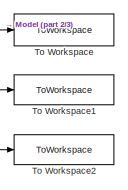
[diagram: root canvas - part 1/3, top right region]
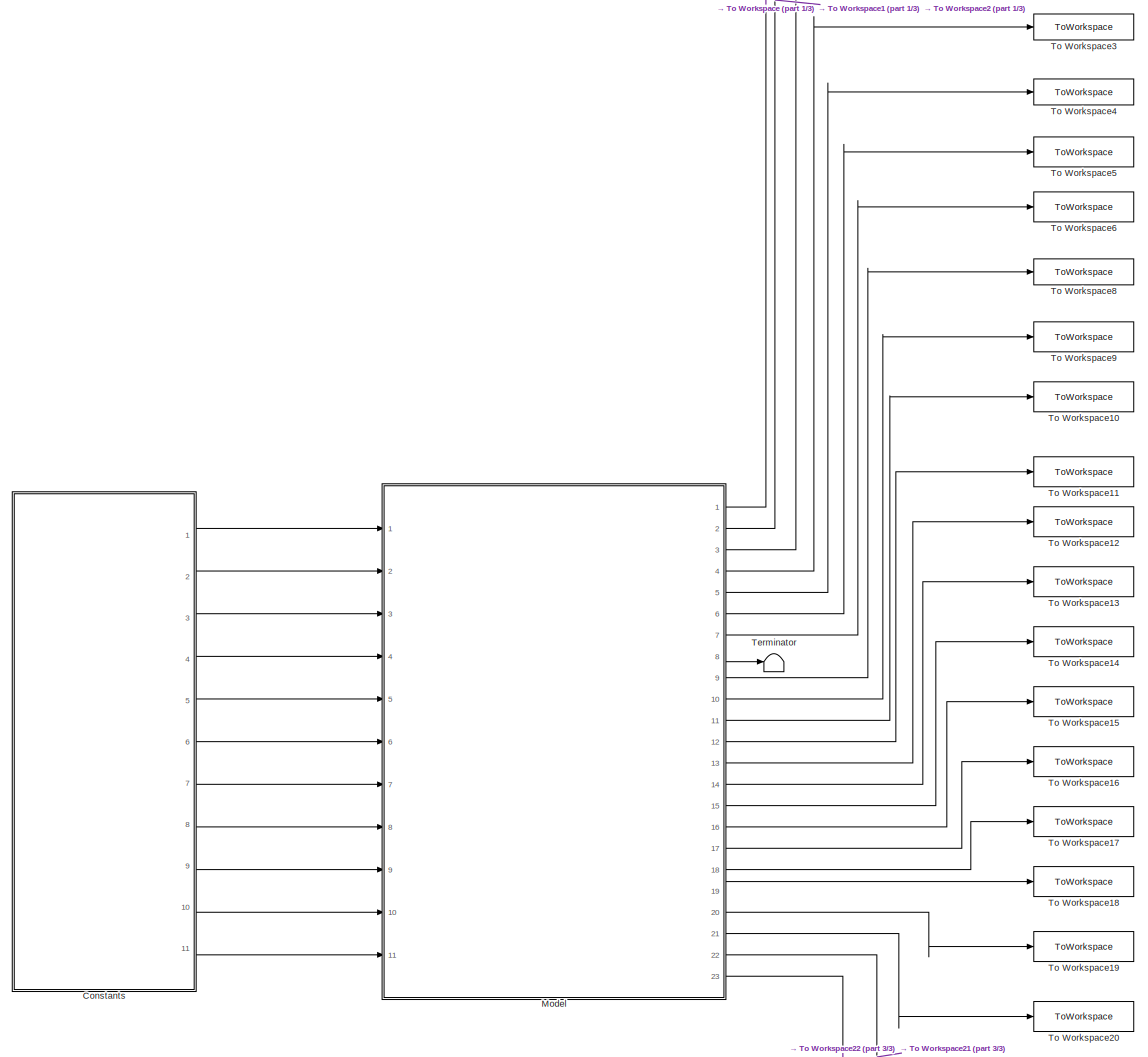
[diagram: root canvas - part 2/3, most of the canvas]
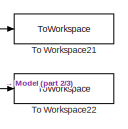
[diagram: root canvas - part 3/3, bottom right region]
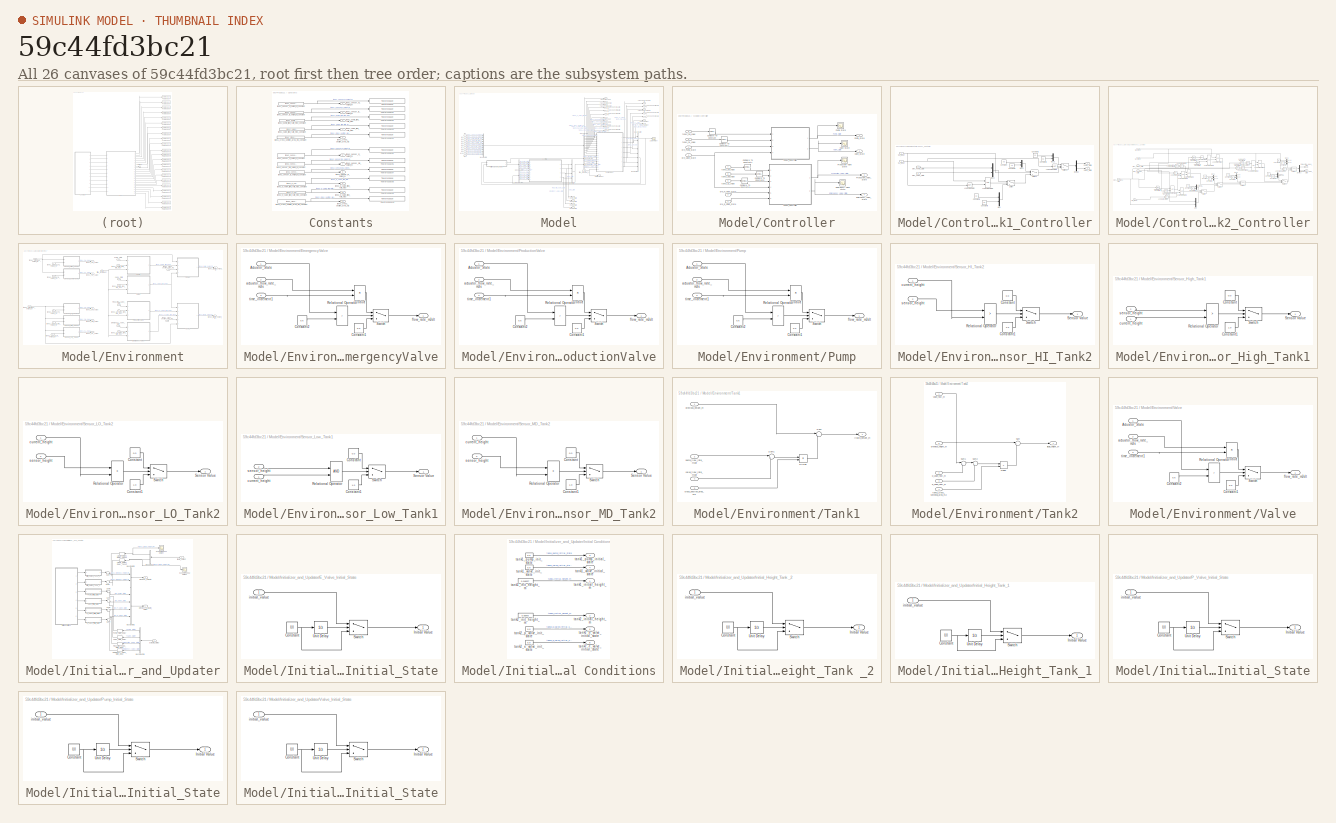
[diagram: thumbnail index - all 26 canvases of the model, root first then tree order]
MODEL slx_59c44fd3bc21
KIND model
CONFIG AbsTol = auto
CONFIG EnableMultiTasking = on
CONFIG FixedStep = 0.1
CONFIG MaxStep = auto
CONFIG MinStep = auto
CONFIG RelTol = 1e-3
CONFIG SampleTimeConstraint = Unconstrained
CONFIG Solver = FixedStepAuto
CONFIG SolverName = FixedStepAuto
CONFIG StartTime = 0.0
CONFIG StopTime = simTime
WORKSPACE source: MAT-file member
WORKSPACE F = [0 0]
BLOCK [SubSystem] Constants
  Ports = [0, 11]
  RequestExecContextInheritance = off
  Variant = off
BLOCK [ToWorkspace] Constants/To Workspace
  FixptAsFi = on
  MaxDataPoints = inf
  Ports = [1]
  SampleTime = -1
  Save2DSignal = 3-D array (concatenate along third dimension)
  VariableName = tank1_sensor_hi_height_m
BLOCK [ToWorkspace] Constants/To Workspace1
  FixptAsFi = on
  MaxDataPoints = inf
  Ports = [1]
  SampleTime = -1
  Save2DSignal = 3-D array (concatenate along third dimension)
  VariableName = tank1_sensor_lo_height_m
BLOCK [ToWorkspace] Constants/To Workspace10
  FixptAsFi = on
  MaxDataPoints = inf
  Ports = [1]
  SampleTime = -1
  Save2DSignal = 3-D array (concatenate along third dimension)
  VariableName = tank2_cross_section_area_m2
BLOCK [ToWorkspace] Constants/To Workspace2
  FixptAsFi = on
  MaxDataPoints = inf
  Ports = [1]
  SampleTime = -1
  Save2DSignal = 3-D array (concatenate along third dimension)
  VariableName = tank1_pump_flow_rate_m3s
BLOCK [ToWorkspace] Constants/To Workspace3
  FixptAsFi = on
  MaxDataPoints = inf
  Ports = [1]
  SampleTime = -1
  Save2DSignal = 3-D array (concatenate along third dimension)
  VariableName = tank1_valve_flow_rate_m3s
BLOCK [ToWorkspace] Constants/To Workspace4
  FixptAsFi = on
  MaxDataPoints = inf
  Ports = [1]
  SampleTime = -1
  Save2DSignal = 3-D array (concatenate along third dimension)
  VariableName = tank1_cross_section_area_m2
BLOCK [ToWorkspace] Constants/To Workspace5
  FixptAsFi = on
  MaxDataPoints = inf
  Ports = [1]
  SampleTime = -1
  Save2DSignal = 3-D array (concatenate along third dimension)
  VariableName = tank2_sensor_hi_height_m
BLOCK [ToWorkspace] Constants/To Workspace6
  FixptAsFi = on
  MaxDataPoints = inf
  Ports = [1]
  SampleTime = -1
  Save2DSignal = 3-D array (concatenate along third dimension)
  VariableName = tank2_sensor_md_height_m
BLOCK [ToWorkspace] Constants/To Workspace7
  FixptAsFi = on
  MaxDataPoints = inf
  Ports = [1]
  SampleTime = -1
  Save2DSignal = 3-D array (concatenate along third dimension)
  VariableName = tank2_sensor_lo_height_m
BLOCK [ToWorkspace] Constants/To Workspace8
  FixptAsFi = on
  MaxDataPoints = inf
  Ports = [1]
  SampleTime = -1
  Save2DSignal = 3-D array (concatenate along third dimension)
  VariableName = tank2_p_valve_flow_rate_m3s
BLOCK [ToWorkspace] Constants/To Workspace9
  FixptAsFi = on
  MaxDataPoints = inf
  Ports = [1]
  SampleTime = -1
  Save2DSignal = 3-D array (concatenate along third dimension)
  VariableName = tank2_e_valve_flow_rate_m3s
BLOCK [Outport] Constants/tank1_cross_section_area_m2
  IconDisplay = Port number
  Port = 5
BLOCK [Constant] Constants/tank1_cross_section_area_m2_constant
  Value = tank1_cross_section_area_m2_in
BLOCK [Outport] Constants/tank1_pump_flow_rate_m3s
  IconDisplay = Port number
  Port = 3
BLOCK [Constant] Constants/tank1_pump_flow_rate_m3s_constant
  Value = tank1_pump_flow_rate_m3s_in
BLOCK [Outport] Constants/tank1_sensor_hi_height_m
  IconDisplay = Port number
BLOCK [Constant] Constants/tank1_sensor_hi_height_m_constant
  Value = tank1_sensor_hi_height_m_in
BLOCK [Outport] Constants/tank1_sensor_lo_height_m
  IconDisplay = Port number
  Port = 2
BLOCK [Constant] Constants/tank1_sensor_lo_height_m_constant
  Value = tank1_sensor_lo_height_m_in
BLOCK [Outport] Constants/tank1_valve_flow_rate_m3s
  IconDisplay = Port number
  Port = 4
BLOCK [Constant] Constants/tank1_valve_flow_rate_m3s_constant
  Value = tank1_valve_flow_rate_m3s_in
BLOCK [Outport] Constants/tank2_cross_section_area_m2
  IconDisplay = Port number
  Port = 11
BLOCK [Constant] Constants/tank2_cross_section_area_m2_constant
  Value = tank2_cross_section_area_m2_in
BLOCK [Outport] Constants/tank2_e_valve_flow_rate_m3s
  IconDisplay = Port number
  Port = 10
BLOCK [Constant] Constants/tank2_e_valve_flow_rate_m3s_constant
  Value = tank2_e_valve_flow_rate_m3s_in
BLOCK [Outport] Constants/tank2_p_valve_flow_rate_m3s
  IconDisplay = Port number
  Port = 9
BLOCK [Constant] Constants/tank2_p_valve_flow_rate_m3s_constant
  Value = tank2_p_valve_flow_rate_m3s_in
BLOCK [Outport] Constants/tank2_sensor_hi_height_m
  IconDisplay = Port number
  Port = 6
BLOCK [Constant] Constants/tank2_sensor_hi_height_m_constant
  Value = tank2_sensor_hi_height_m_in
BLOCK [Outport] Constants/tank2_sensor_lo_height_m
  IconDisplay = Port number
  Port = 8
BLOCK [Constant] Constants/tank2_sensor_lo_height_m_constant
  Value = tank2_sensor_lo_height_m_in
BLOCK [Outport] Constants/tank2_sensor_md_height_m
  IconDisplay = Port number
  Port = 7
BLOCK [Constant] Constants/tank2_sensor_md_height_m_constant
  Value = tank2_sensor_md_height_m_in
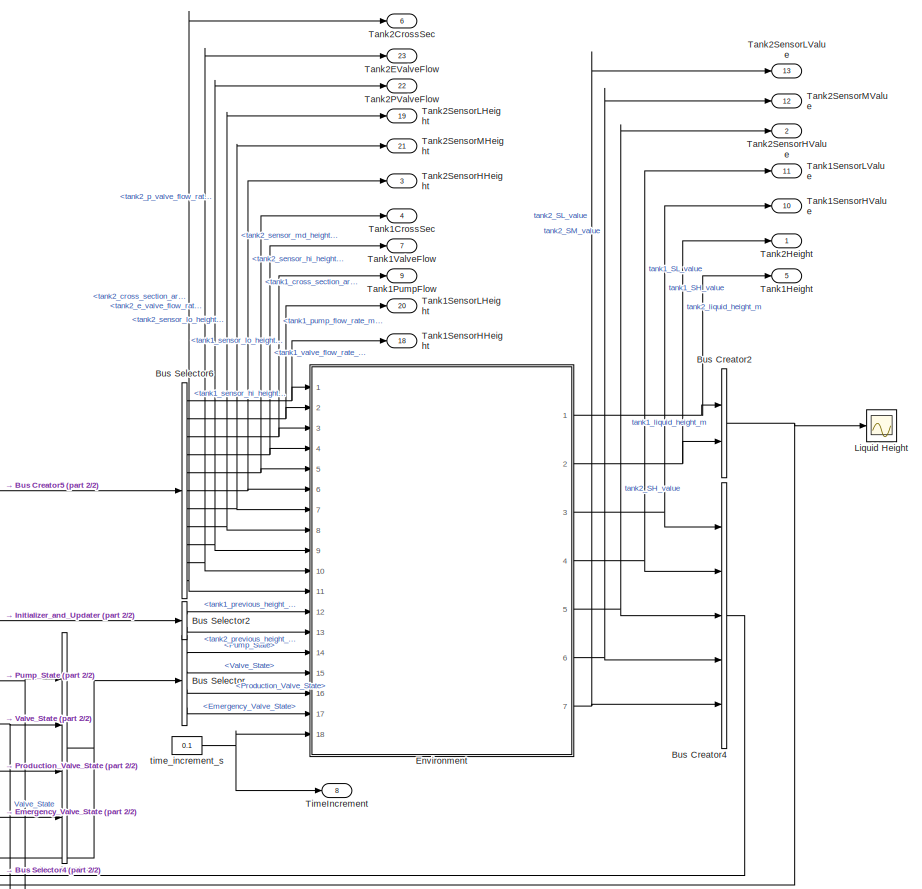
[diagram: Model - part 1/2, right side, full height]
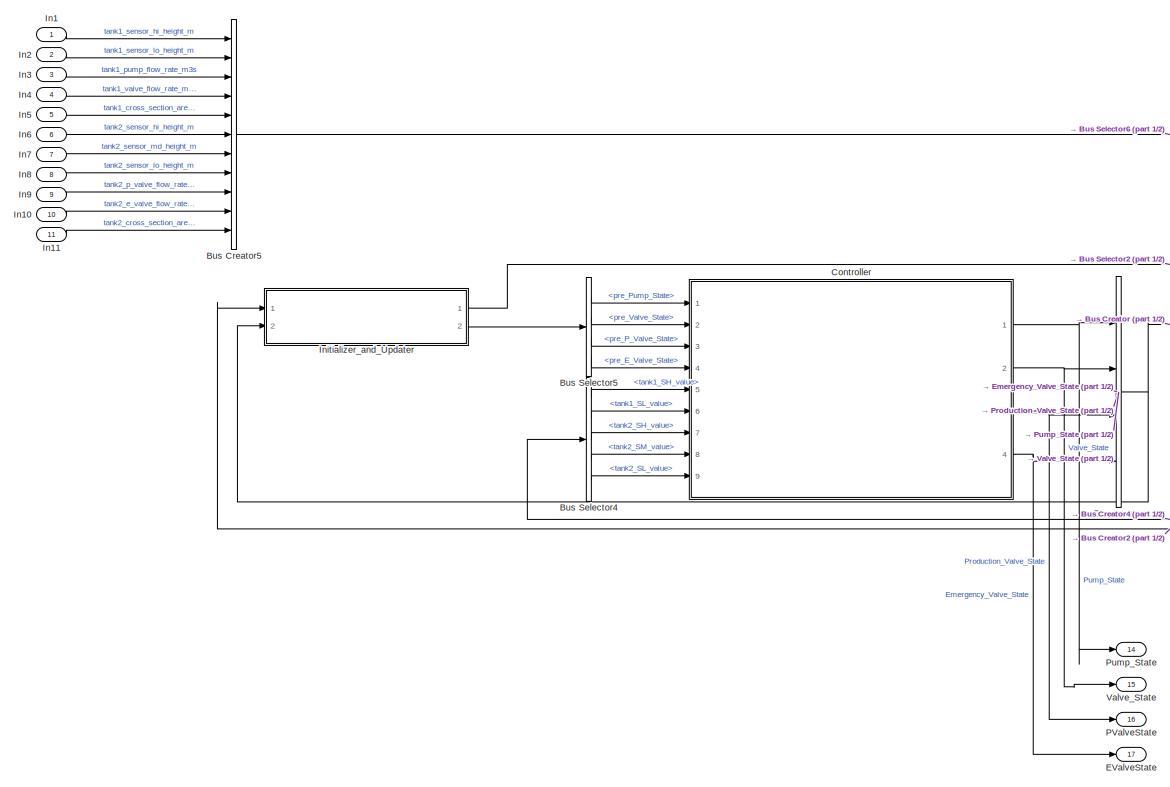
[diagram: Model - part 2/2, middle left region]
BLOCK [SubSystem] Model
  Ports = [11, 23]
  RequestExecContextInheritance = off
  Variant = off
BLOCK [BusCreator] Model/Bus Creator
  DisplayOption = bar
  InheritFromInputs = on
  Inputs = 4
  Ports = [4, 1]
BLOCK [BusCreator] Model/Bus Creator2
  DisplayOption = bar
  InheritFromInputs = on
  Inputs = 'tank1_liquid_height_m','tank2_liquid_height_m'
  Ports = [2, 1]
BLOCK [BusCreator] Model/Bus Creator4
  DisplayOption = bar
  InheritFromInputs = on
  Inputs = 'tank1_SH_value','tank1_SL_value','tank2_SH_value','tank2_SM_value','tank2_SL_value'
  Ports = [5, 1]
BLOCK [BusCreator] Model/Bus Creator5
  DisplayOption = bar
  InheritFromInputs = on
  Inputs = 'tank1_sensor_hi_height_m','tank1_sensor_lo_height_m','tank1_pump_flow_rate_m3s','tank1_valve_flow_rate_m3s','tank1_cross_section_area_m2','tank2_sensor_hi_height_m','tank2_sensor_md_height_m','tank2_sensor_lo_height_m','tank2_p_valve_flow_rate_m3s','tank2_e_valve_flow_rate_m3s','tank2_cross_section_area_m2'
  Ports = [11, 1]
BLOCK [BusSelector] Model/Bus Selector
  OutputAsBus = off
  OutputSignals = Pump_State,Valve_State,Production_Valve_State,Emergency_Valve_State
  Ports = [1, 4]
BLOCK [BusSelector] Model/Bus Selector2
  OutputAsBus = off
  OutputSignals = tank1_previous_height_m,tank2_previous_height_m
  Ports = [1, 2]
BLOCK [BusSelector] Model/Bus Selector4
  OutputAsBus = off
  OutputSignals = tank1_SH_value,tank1_SL_value,tank2_SH_value,tank2_SM_value,tank2_SL_value
  Ports = [1, 5]
BLOCK [BusSelector] Model/Bus Selector5
  OutputAsBus = off
  OutputSignals = pre_Pump_State,pre_Valve_State,pre_P_Valve_State,pre_E_Valve_State
  Ports = [1, 4]
BLOCK [BusSelector] Model/Bus Selector6
  OutputAsBus = off
  OutputSignals = tank1_sensor_hi_height_m,tank1_sensor_lo_height_m,tank1_pump_flow_rate_m3s,tank1_valve_flow_rate_m3s,tank1_cross_section_area_m2,tank2_sensor_hi_height_m,tank2_sensor_md_height_m,tank2_sensor_lo_height_m,tank2_p_valve_flow_rate_m3s,tank2_e_valve_flow_rate_m3s,tank2_cross_section_area_m2
  Ports = [1, 11]
BLOCK [SubSystem] Model/Controller
  Ports = [9, 4]
  RequestExecContextInheritance = off
  Variant = off
BLOCK [Reference] Model/Controller/Compare To Constant  REF=simulink/Logic and Bit
Operations/Compare
To Constant
  Ports = [1, 1]
  SourceBlock = simulink/Logic and Bit\nOperations/Compare\nTo Constant
  SourceProductBaseCode = SL
  SourceProductName = Simulink
  SourceType = Compare To Constant
BLOCK [Reference] Model/Controller/Compare To Constant1  REF=simulink/Logic and Bit
Operations/Compare
To Constant
  Ports = [1, 1]
  SourceBlock = simulink/Logic and Bit\nOperations/Compare\nTo Constant
  SourceProductBaseCode = SL
  SourceProductName = Simulink
  SourceType = Compare To Constant
BLOCK [Reference] Model/Controller/Compare To Constant4  REF=simulink/Logic and Bit
Operations/Compare
To Constant
  Ports = [1, 1]
  SourceBlock = simulink/Logic and Bit\nOperations/Compare\nTo Constant
  SourceProductBaseCode = SL
  SourceProductName = Simulink
  SourceType = Compare To Constant
BLOCK [Reference] Model/Controller/Compare To Constant5  REF=simulink/Logic and Bit
Operations/Compare
To Constant
  Ports = [1, 1]
  SourceBlock = simulink/Logic and Bit\nOperations/Compare\nTo Constant
  SourceProductBaseCode = SL
  SourceProductName = Simulink
  SourceType = Compare To Constant
BLOCK [Reference] Model/Controller/Compare To Constant6  REF=simulink/Logic and Bit
Operations/Compare
To Constant
  Ports = [1, 1]
  SourceBlock = simulink/Logic and Bit\nOperations/Compare\nTo Constant
  SourceProductBaseCode = SL
  SourceProductName = Simulink
  SourceType = Compare To Constant
BLOCK [Scope] Model/Controller/Emergency Valve State
  NumInputPorts = 1
  Ports = [1]
  ScopeSpecificationString = Simulink.scopes.TimeScopeBlockCfg('CurrentConfiguration', extmgr.ConfigurationSet(extmgr.Configuration('Core','General UI',true),extmgr.Configuration('Core','Source UI',true),extmgr.Configuration('Sources','WiredSimulink',true,'DataLoggingVariableName','ScopeData3','DataLoggingSaveFormat','StructureWithTime','DataLoggingLimitDataPoints',true,'DataLoggingDecimation','1','DataLoggingDecimateData',tr...<+911ch>
BLOCK [Outport] Model/Controller/Emergency_Valve_State
  IconDisplay = Port number
  Port = 4
BLOCK [Scope] Model/Controller/Production Valve State
  NumInputPorts = 1
  Ports = [1]
  ScopeSpecificationString = Simulink.scopes.TimeScopeBlockCfg('CurrentConfiguration', extmgr.ConfigurationSet(extmgr.Configuration('Core','General UI',true),extmgr.Configuration('Core','Source UI',true),extmgr.Configuration('Sources','WiredSimulink',true,'DataLoggingVariableName','ScopeData2','DataLoggingSaveFormat','StructureWithTime','DataLoggingLimitDataPoints',true,'DataLoggingDecimation','1','DataLoggingDecimateData',tr...<+913ch>
BLOCK [Outport] Model/Controller/Production_Valve_State
  IconDisplay = Port number
  Port = 3
BLOCK [Scope] Model/Controller/Pump State 
  NumInputPorts = 1
  Ports = [1]
  ScopeSpecificationString = Simulink.scopes.TimeScopeBlockCfg('CurrentConfiguration', extmgr.ConfigurationSet(extmgr.Configuration('Core','General UI',true),extmgr.Configuration('Core','Source UI',true),extmgr.Configuration('Sources','WiredSimulink',true,'DataLoggingVariableName','ScopeData4','DataLoggingSaveFormat','StructureWithTime','DataLoggingLimitDataPoints',true,'DataLoggingDecimation','1','DataLoggingDecimateData',tr...<+1673ch>
BLOCK [Outport] Model/Controller/Pump_State
  IconDisplay = Port number
BLOCK [SubSystem] Model/Controller/Tank1_Controller
  Ports = [4, 2]
  RequestExecContextInheritance = off
  Variant = off
BLOCK [Constant] Model/Controller/Tank1_Controller/Constant
  Value = 0.0
BLOCK [Constant] Model/Controller/Tank1_Controller/Constant1
  Value = 1.0
BLOCK [Constant] Model/Controller/Tank1_Controller/Constant2
  Value = 1.0
BLOCK [Constant] Model/Controller/Tank1_Controller/Constant3
  Value = 0.0
BLOCK [Constant] Model/Controller/Tank1_Controller/Constant4
  Value = -1.0
BLOCK [Constant] Model/Controller/Tank1_Controller/Constant5
  Value = -1.0
BLOCK [Demux] Model/Controller/Tank1_Controller/Demux
  DisplayOption = bar
  Outputs = 2
  Ports = [1, 2]
BLOCK [Logic] Model/Controller/Tank1_Controller/Logical Operator
  AllPortsSameDT = off
  Operator = NOT
  OutDataTypeStr = boolean
  Ports = [1, 1]
BLOCK [Logic] Model/Controller/Tank1_Controller/Logical Operator1
  AllPortsSameDT = off
  OutDataTypeStr = boolean
  Ports = [2, 1]
BLOCK [Logic] Model/Controller/Tank1_Controller/Logical Operator2
  AllPortsSameDT = off
  Operator = NOT
  OutDataTypeStr = boolean
  Ports = [1, 1]
BLOCK [Mux] Model/Controller/Tank1_Controller/Mux
  DisplayOption = bar
  Inputs = 2
  Ports = [2, 1]
BLOCK [Mux] Model/Controller/Tank1_Controller/Mux1
  DisplayOption = bar
  Inputs = 2
  Ports = [2, 1]
BLOCK [Mux] Model/Controller/Tank1_Controller/Mux2
  DisplayOption = bar
  Inputs = 2
  Ports = [2, 1]
BLOCK [Mux] Model/Controller/Tank1_Controller/Mux3
  DisplayOption = bar
  Inputs = 2
  Ports = [2, 1]
BLOCK [Outport] Model/Controller/Tank1_Controller/Pump_State
  IconDisplay = Port number
BLOCK [Inport] Model/Controller/Tank1_Controller/SH_Input
  IconDisplay = Port number
BLOCK [Inport] Model/Controller/Tank1_Controller/SL_Input
  IconDisplay = Port number
  Port = 2
BLOCK [Switch] Model/Controller/Tank1_Controller/Switch
  Criteria = u2 ~= 0
  InputSameDT = off
  SaturateOnIntegerOverflow = off
BLOCK [Switch] Model/Controller/Tank1_Controller/Switch2
  Criteria = u2 ~= 0
  InputSameDT = off
  SaturateOnIntegerOverflow = off
BLOCK [Switch] Model/Controller/Tank1_Controller/Switch3
  Criteria = u2 ~= 0
  InputSameDT = off
  SaturateOnIntegerOverflow = off
BLOCK [Outport] Model/Controller/Tank1_Controller/Valve_State
  IconDisplay = Port number
  Port = 2
BLOCK [Inport] Model/Controller/Tank1_Controller/prev_Pump_State
  IconDisplay = Port number
  Port = 3
BLOCK [Inport] Model/Controller/Tank1_Controller/prev_Valve_State
  IconDisplay = Port number
  Port = 4
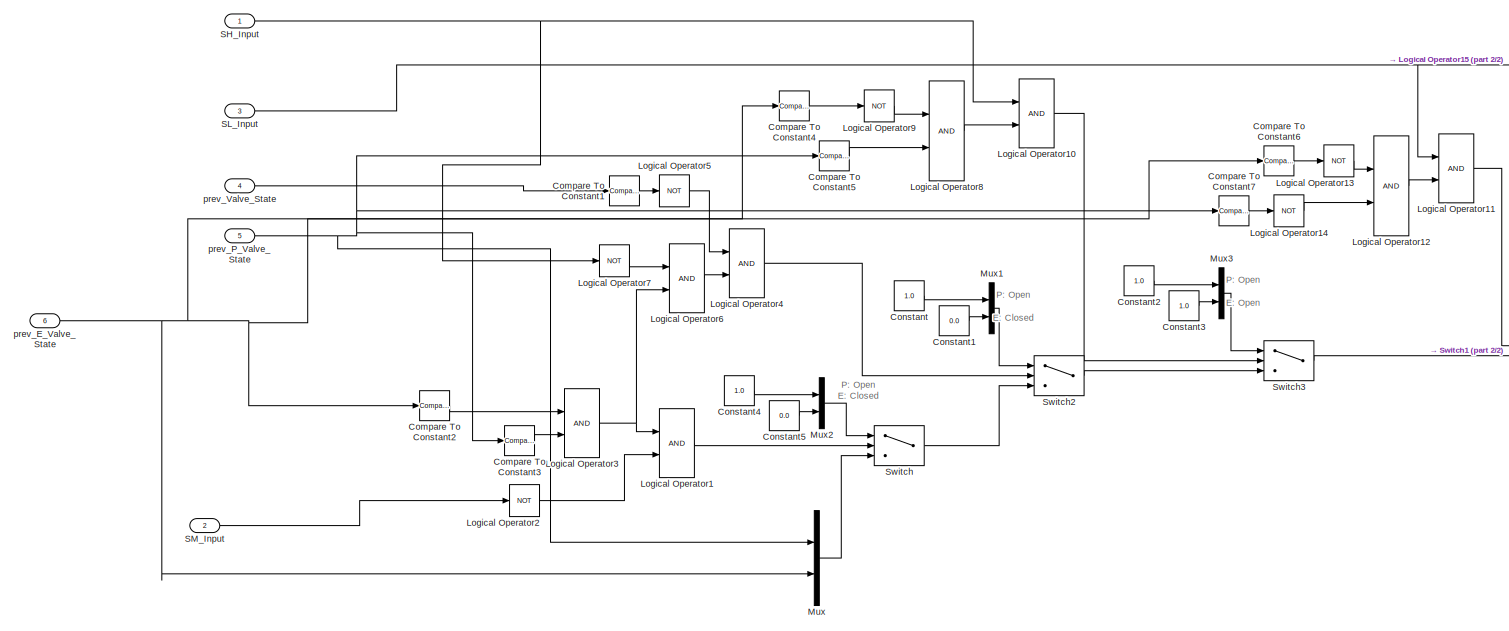
[diagram: Model/Controller/Tank2_Controller - part 1/2, most of the canvas]
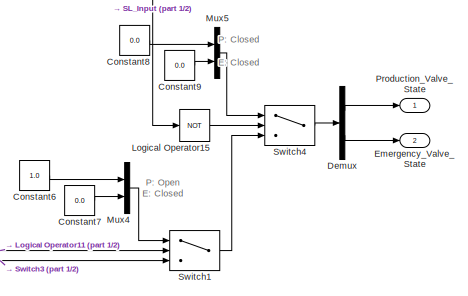
[diagram: Model/Controller/Tank2_Controller - part 2/2, middle right region]
BLOCK [SubSystem] Model/Controller/Tank2_Controller
  Ports = [6, 2]
  RequestExecContextInheritance = off
  Variant = off
BLOCK [Reference] Model/Controller/Tank2_Controller/Compare To Constant1  REF=simulink/Logic and Bit
Operations/Compare
To Constant
  Ports = [1, 1]
  SourceBlock = simulink/Logic and Bit\nOperations/Compare\nTo Constant
  SourceProductBaseCode = SL
  SourceProductName = Simulink
  SourceType = Compare To Constant
BLOCK [Reference] Model/Controller/Tank2_Controller/Compare To Constant2  REF=simulink/Logic and Bit
Operations/Compare
To Constant
  Ports = [1, 1]
  SourceBlock = simulink/Logic and Bit\nOperations/Compare\nTo Constant
  SourceProductBaseCode = SL
  SourceProductName = Simulink
  SourceType = Compare To Constant
BLOCK [Reference] Model/Controller/Tank2_Controller/Compare To Constant3  REF=simulink/Logic and Bit
Operations/Compare
To Constant
  Ports = [1, 1]
  SourceBlock = simulink/Logic and Bit\nOperations/Compare\nTo Constant
  SourceProductBaseCode = SL
  SourceProductName = Simulink
  SourceType = Compare To Constant
BLOCK [Reference] Model/Controller/Tank2_Controller/Compare To Constant4  REF=simulink/Logic and Bit
Operations/Compare
To Constant
  Ports = [1, 1]
  SourceBlock = simulink/Logic and Bit\nOperations/Compare\nTo Constant
  SourceProductBaseCode = SL
  SourceProductName = Simulink
  SourceType = Compare To Constant
BLOCK [Reference] Model/Controller/Tank2_Controller/Compare To Constant5  REF=simulink/Logic and Bit
Operations/Compare
To Constant
  Ports = [1, 1]
  SourceBlock = simulink/Logic and Bit\nOperations/Compare\nTo Constant
  SourceProductBaseCode = SL
  SourceProductName = Simulink
  SourceType = Compare To Constant
BLOCK [Reference] Model/Controller/Tank2_Controller/Compare To Constant6  REF=simulink/Logic and Bit
Operations/Compare
To Constant
  Ports = [1, 1]
  SourceBlock = simulink/Logic and Bit\nOperations/Compare\nTo Constant
  SourceProductBaseCode = SL
  SourceProductName = Simulink
  SourceType = Compare To Constant
BLOCK [Reference] Model/Controller/Tank2_Controller/Compare To Constant7  REF=simulink/Logic and Bit
Operations/Compare
To Constant
  Ports = [1, 1]
  SourceBlock = simulink/Logic and Bit\nOperations/Compare\nTo Constant
  SourceProductBaseCode = SL
  SourceProductName = Simulink
  SourceType = Compare To Constant
BLOCK [Constant] Model/Controller/Tank2_Controller/Constant
  Value = 1.0
BLOCK [Constant] Model/Controller/Tank2_Controller/Constant1
  Value = 0.0
BLOCK [Constant] Model/Controller/Tank2_Controller/Constant2
  Value = 1.0
BLOCK [Constant] Model/Controller/Tank2_Controller/Constant3
  Value = 1.0
BLOCK [Constant] Model/Controller/Tank2_Controller/Constant4
  Value = 1.0
BLOCK [Constant] Model/Controller/Tank2_Controller/Constant5
  Value = 0.0
BLOCK [Constant] Model/Controller/Tank2_Controller/Constant6
  Value = 1.0
BLOCK [Constant] Model/Controller/Tank2_Controller/Constant7
  Value = 0.0
BLOCK [Constant] Model/Controller/Tank2_Controller/Constant8
  Value = 0.0
BLOCK [Constant] Model/Controller/Tank2_Controller/Constant9
  Value = 0.0
BLOCK [Demux] Model/Controller/Tank2_Controller/Demux
  DisplayOption = bar
  Outputs = 2
  Ports = [1, 2]
BLOCK [Outport] Model/Controller/Tank2_Controller/Emergency_Valve_State
  IconDisplay = Port number
  Port = 2
BLOCK [Logic] Model/Controller/Tank2_Controller/Logical Operator1
  AllPortsSameDT = off
  OutDataTypeStr = boolean
  Ports = [2, 1]
BLOCK [Logic] Model/Controller/Tank2_Controller/Logical Operator10
  AllPortsSameDT = off
  OutDataTypeStr = boolean
  Ports = [2, 1]
BLOCK [Logic] Model/Controller/Tank2_Controller/Logical Operator11
  AllPortsSameDT = off
  OutDataTypeStr = boolean
  Ports = [2, 1]
BLOCK [Logic] Model/Controller/Tank2_Controller/Logical Operator12
  AllPortsSameDT = off
  OutDataTypeStr = boolean
  Ports = [2, 1]
BLOCK [Logic] Model/Controller/Tank2_Controller/Logical Operator13
  AllPortsSameDT = off
  Operator = NOT
  OutDataTypeStr = boolean
  Ports = [1, 1]
BLOCK [Logic] Model/Controller/Tank2_Controller/Logical Operator14
  AllPortsSameDT = off
  Operator = NOT
  OutDataTypeStr = boolean
  Ports = [1, 1]
BLOCK [Logic] Model/Controller/Tank2_Controller/Logical Operator15
  AllPortsSameDT = off
  Operator = NOT
  OutDataTypeStr = boolean
  Ports = [1, 1]
BLOCK [Logic] Model/Controller/Tank2_Controller/Logical Operator2
  AllPortsSameDT = off
  Operator = NOT
  OutDataTypeStr = boolean
  Ports = [1, 1]
BLOCK [Logic] Model/Controller/Tank2_Controller/Logical Operator3
  AllPortsSameDT = off
  OutDataTypeStr = boolean
  Ports = [2, 1]
BLOCK [Logic] Model/Controller/Tank2_Controller/Logical Operator4
  AllPortsSameDT = off
  OutDataTypeStr = boolean
  Ports = [2, 1]
BLOCK [Logic] Model/Controller/Tank2_Controller/Logical Operator5
  AllPortsSameDT = off
  Operator = NOT
  OutDataTypeStr = boolean
  Ports = [1, 1]
BLOCK [Logic] Model/Controller/Tank2_Controller/Logical Operator6
  AllPortsSameDT = off
  OutDataTypeStr = boolean
  Ports = [2, 1]
BLOCK [Logic] Model/Controller/Tank2_Controller/Logical Operator7
  AllPortsSameDT = off
  Operator = NOT
  OutDataTypeStr = boolean
  Ports = [1, 1]
BLOCK [Logic] Model/Controller/Tank2_Controller/Logical Operator8
  AllPortsSameDT = off
  OutDataTypeStr = boolean
  Ports = [2, 1]
BLOCK [Logic] Model/Controller/Tank2_Controller/Logical Operator9
  AllPortsSameDT = off
  Operator = NOT
  OutDataTypeStr = boolean
  Ports = [1, 1]
BLOCK [Mux] Model/Controller/Tank2_Controller/Mux
  DisplayOption = bar
  Inputs = 2
  Ports = [2, 1]
BLOCK [Mux] Model/Controller/Tank2_Controller/Mux1
  DisplayOption = bar
  Inputs = 2
  Ports = [2, 1]
BLOCK [Mux] Model/Controller/Tank2_Controller/Mux2
  DisplayOption = bar
  Inputs = 2
  Ports = [2, 1]
BLOCK [Mux] Model/Controller/Tank2_Controller/Mux3
  DisplayOption = bar
  Inputs = 2
  Ports = [2, 1]
BLOCK [Mux] Model/Controller/Tank2_Controller/Mux4
  DisplayOption = bar
  Inputs = 2
  Ports = [2, 1]
BLOCK [Mux] Model/Controller/Tank2_Controller/Mux5
  DisplayOption = bar
  Inputs = 2
  Ports = [2, 1]
BLOCK [Outport] Model/Controller/Tank2_Controller/Production_Valve_State
  IconDisplay = Port number
BLOCK [Inport] Model/Controller/Tank2_Controller/SH_Input
  IconDisplay = Port number
BLOCK [Inport] Model/Controller/Tank2_Controller/SL_Input
  IconDisplay = Port number
  Port = 3
BLOCK [Inport] Model/Controller/Tank2_Controller/SM_Input
  IconDisplay = Port number
  Port = 2
BLOCK [Switch] Model/Controller/Tank2_Controller/Switch
  Criteria = u2 ~= 0
  InputSameDT = off
  SaturateOnIntegerOverflow = off
BLOCK [Switch] Model/Controller/Tank2_Controller/Switch1
  Criteria = u2 ~= 0
  InputSameDT = off
  SaturateOnIntegerOverflow = off
BLOCK [Switch] Model/Controller/Tank2_Controller/Switch2
  Criteria = u2 ~= 0
  InputSameDT = off
  SaturateOnIntegerOverflow = off
BLOCK [Switch] Model/Controller/Tank2_Controller/Switch3
  Criteria = u2 ~= 0
  InputSameDT = off
  SaturateOnIntegerOverflow = off
BLOCK [Switch] Model/Controller/Tank2_Controller/Switch4
  Criteria = u2 ~= 0
  InputSameDT = off
  SaturateOnIntegerOverflow = off
BLOCK [Inport] Model/Controller/Tank2_Controller/prev_E_Valve_State
  IconDisplay = Port number
  Port = 6
BLOCK [Inport] Model/Controller/Tank2_Controller/prev_P_Valve_State
  IconDisplay = Port number
  Port = 5
BLOCK [Inport] Model/Controller/Tank2_Controller/prev_Valve_State
  IconDisplay = Port number
  Port = 4
BLOCK [Scope] Model/Controller/Valve State
  NumInputPorts = 1
  Ports = [1]
  ScopeSpecificationString = Simulink.scopes.TimeScopeBlockCfg('CurrentConfiguration', extmgr.ConfigurationSet(extmgr.Configuration('Core','General UI',true),extmgr.Configuration('Core','Source UI',true),extmgr.Configuration('Sources','WiredSimulink',true,'DataLoggingVariableName','ScopeData1','DataLoggingSaveFormat','StructureWithTime','DataLoggingLimitDataPoints',true,'DataLoggingDecimation','1','DataLoggingDecimateData',tr...<+1672ch>
BLOCK [Outport] Model/Controller/Valve_State
  IconDisplay = Port number
  Port = 2
BLOCK [Inport] Model/Controller/pre_E_Valve_State
  IconDisplay = Port number
  Port = 4
BLOCK [Inport] Model/Controller/pre_P_Valve_State
  IconDisplay = Port number
  Port = 3
BLOCK [Inport] Model/Controller/pre_Pump_State
  IconDisplay = Port number
BLOCK [Inport] Model/Controller/pre_Valve_State
  IconDisplay = Port number
  Port = 2
BLOCK [Inport] Model/Controller/tank1_SH_value
  IconDisplay = Port number
  Port = 5
BLOCK [Inport] Model/Controller/tank1_SL_value
  IconDisplay = Port number
  Port = 6
BLOCK [Inport] Model/Controller/tank2_SH_value
  IconDisplay = Port number
  Port = 7
BLOCK [Inport] Model/Controller/tank2_SL_value
  IconDisplay = Port number
  Port = 9
BLOCK [Inport] Model/Controller/tank2_SM_value
  IconDisplay = Port number
  Port = 8
BLOCK [Outport] Model/EValveState
  IconDisplay = Port number
  Port = 17
BLOCK [SubSystem] Model/Environment
  Ports = [18, 7]
  RequestExecContextInheritance = off
  Variant = off
BLOCK [SubSystem] Model/Environment/EmergencyValve
  Ports = [3, 1]
  RequestExecContextInheritance = off
  Variant = off
BLOCK [Inport] Model/Environment/EmergencyValve/Actuator_State
  IconDisplay = Port number
BLOCK [Constant] Model/Environment/EmergencyValve/Constant1
  Value = 0.0
BLOCK [Constant] Model/Environment/EmergencyValve/Constant2
  Value = 0.5
BLOCK [Product] Model/Environment/EmergencyValve/Product
  InputSameDT = off
  OutDataTypeStr = Inherit: Inherit via internal rule
  Ports = [2, 1]
  RndMeth = Floor
  SaturateOnIntegerOverflow = off
BLOCK [RelationalOperator] Model/Environment/EmergencyValve/Relational Operator
  InputSameDT = off
  Operator = >
  OutDataTypeStr = boolean
  Ports = [2, 1]
BLOCK [Switch] Model/Environment/EmergencyValve/Switch
  Criteria = u2 ~= 0
  InputSameDT = off
  SaturateOnIntegerOverflow = off
BLOCK [Inport] Model/Environment/EmergencyValve/actuator_flow_rate_m3s
  IconDisplay = Port number
  Port = 2
BLOCK [Outport] Model/Environment/EmergencyValve/flow_rate_m3dt
  IconDisplay = Port number
BLOCK [Inport] Model/Environment/EmergencyValve/time_increment1
  IconDisplay = Port number
  Port = 3
BLOCK [Inport] Model/Environment/Emergency_Valve_State
  IconDisplay = Port number
  Port = 17
BLOCK [SubSystem] Model/Environment/ProductionValve
  Ports = [3, 1]
  RequestExecContextInheritance = off
  Variant = off
BLOCK [Inport] Model/Environment/ProductionValve/Actuator_State
  IconDisplay = Port number
BLOCK [Constant] Model/Environment/ProductionValve/Constant1
  Value = 0.0
BLOCK [Constant] Model/Environment/ProductionValve/Constant2
  Value = 0.5
BLOCK [Product] Model/Environment/ProductionValve/Product
  InputSameDT = off
  OutDataTypeStr = Inherit: Inherit via internal rule
  Ports = [2, 1]
  RndMeth = Floor
  SaturateOnIntegerOverflow = off
BLOCK [RelationalOperator] Model/Environment/ProductionValve/Relational Operator
  InputSameDT = off
  Operator = >
  OutDataTypeStr = boolean
  Ports = [2, 1]
BLOCK [Switch] Model/Environment/ProductionValve/Switch
  Criteria = u2 ~= 0
  InputSameDT = off
  SaturateOnIntegerOverflow = off
BLOCK [Inport] Model/Environment/ProductionValve/actuator_flow_rate_m3s
  IconDisplay = Port number
  Port = 2
BLOCK [Outport] Model/Environment/ProductionValve/flow_rate_m3dt
  IconDisplay = Port number
BLOCK [Inport] Model/Environment/ProductionValve/time_increment1
  IconDisplay = Port number
  Port = 3
BLOCK [Inport] Model/Environment/Production_Valve_State
  IconDisplay = Port number
  Port = 16
BLOCK [SubSystem] Model/Environment/Pump
  Ports = [3, 1]
  RequestExecContextInheritance = off
  Variant = off
BLOCK [Inport] Model/Environment/Pump/Actuator_State
  IconDisplay = Port number
BLOCK [Constant] Model/Environment/Pump/Constant1
  Value = 0.0
BLOCK [Constant] Model/Environment/Pump/Constant2
  Value = 0.5
BLOCK [Product] Model/Environment/Pump/Product
  InputSameDT = off
  OutDataTypeStr = Inherit: Inherit via internal rule
  Ports = [2, 1]
  RndMeth = Floor
  SaturateOnIntegerOverflow = off
BLOCK [RelationalOperator] Model/Environment/Pump/Relational Operator
  InputSameDT = off
  Operator = >
  OutDataTypeStr = boolean
  Ports = [2, 1]
BLOCK [Switch] Model/Environment/Pump/Switch
  Criteria = u2 ~= 0
  InputSameDT = off
  SaturateOnIntegerOverflow = off
BLOCK [Inport] Model/Environment/Pump/actuator_flow_rate_m3s
  IconDisplay = Port number
  Port = 2
BLOCK [Outport] Model/Environment/Pump/flow_rate_m3dt
  IconDisplay = Port number
BLOCK [Inport] Model/Environment/Pump/time_increment1
  IconDisplay = Port number
  Port = 3
BLOCK [Inport] Model/Environment/Pump_State
  IconDisplay = Port number
  Port = 14
BLOCK [SubSystem] Model/Environment/Sensor_HI_Tank2
  Ports = [2, 1]
  RequestExecContextInheritance = off
  Variant = off
BLOCK [Constant] Model/Environment/Sensor_HI_Tank2/Constant
  Value = 0.0
BLOCK [Constant] Model/Environment/Sensor_HI_Tank2/Constant1
  Value = 1.0
BLOCK [RelationalOperator] Model/Environment/Sensor_HI_Tank2/Relational Operator
  InputSameDT = off
  Operator = >
  OutDataTypeStr = boolean
  Ports = [2, 1]
BLOCK [Outport] Model/Environment/Sensor_HI_Tank2/Sensor Value
  IconDisplay = Port number
BLOCK [Switch] Model/Environment/Sensor_HI_Tank2/Switch
  Criteria = u2 ~= 0
  InputSameDT = off
  SaturateOnIntegerOverflow = off
BLOCK [Inport] Model/Environment/Sensor_HI_Tank2/current_height
  IconDisplay = Port number
BLOCK [Inport] Model/Environment/Sensor_HI_Tank2/sensor_height
  IconDisplay = Port number
  Port = 2
BLOCK [SubSystem] Model/Environment/Sensor_High_Tank1
  Ports = [2, 1]
  RequestExecContextInheritance = off
  Variant = off
BLOCK [Constant] Model/Environment/Sensor_High_Tank1/Constant
  Value = 0.0
BLOCK [Constant] Model/Environment/Sensor_High_Tank1/Constant1
  Value = 1.0
BLOCK [RelationalOperator] Model/Environment/Sensor_High_Tank1/Relational Operator
  InputSameDT = off
  Operator = >
  OutDataTypeStr = boolean
  Ports = [2, 1]
BLOCK [Outport] Model/Environment/Sensor_High_Tank1/Sensor Value
  IconDisplay = Port number
BLOCK [Switch] Model/Environment/Sensor_High_Tank1/Switch
  Criteria = u2 ~= 0
  InputSameDT = off
  SaturateOnIntegerOverflow = off
BLOCK [Inport] Model/Environment/Sensor_High_Tank1/current_height
  IconDisplay = Port number
BLOCK [Inport] Model/Environment/Sensor_High_Tank1/sensor_height
  IconDisplay = Port number
  Port = 2
BLOCK [SubSystem] Model/Environment/Sensor_LO_Tank2
  Ports = [2, 1]
  RequestExecContextInheritance = off
  Variant = off
BLOCK [Constant] Model/Environment/Sensor_LO_Tank2/Constant
  Value = 0.0
BLOCK [Constant] Model/Environment/Sensor_LO_Tank2/Constant1
  Value = 1.0
BLOCK [RelationalOperator] Model/Environment/Sensor_LO_Tank2/Relational Operator
  InputSameDT = off
  Operator = >
  OutDataTypeStr = boolean
  Ports = [2, 1]
BLOCK [Outport] Model/Environment/Sensor_LO_Tank2/Sensor Value
  IconDisplay = Port number
BLOCK [Switch] Model/Environment/Sensor_LO_Tank2/Switch
  Criteria = u2 ~= 0
  InputSameDT = off
  SaturateOnIntegerOverflow = off
BLOCK [Inport] Model/Environment/Sensor_LO_Tank2/current_height
  IconDisplay = Port number
BLOCK [Inport] Model/Environment/Sensor_LO_Tank2/sensor_height
  IconDisplay = Port number
  Port = 2
BLOCK [SubSystem] Model/Environment/Sensor_Low_Tank1
  Ports = [2, 1]
  RequestExecContextInheritance = off
  Variant = off
BLOCK [Constant] Model/Environment/Sensor_Low_Tank1/Constant
  Value = 0.0
BLOCK [Constant] Model/Environment/Sensor_Low_Tank1/Constant1
  Value = 1.0
BLOCK [RelationalOperator] Model/Environment/Sensor_Low_Tank1/Relational Operator
  InputSameDT = off
  OutDataTypeStr = boolean
  Ports = [2, 1]
BLOCK [Outport] Model/Environment/Sensor_Low_Tank1/Sensor Value
  IconDisplay = Port number
BLOCK [Switch] Model/Environment/Sensor_Low_Tank1/Switch
  Criteria = u2 ~= 0
  InputSameDT = off
  SaturateOnIntegerOverflow = off
BLOCK [Inport] Model/Environment/Sensor_Low_Tank1/current_height
  IconDisplay = Port number
BLOCK [Inport] Model/Environment/Sensor_Low_Tank1/sensor_height
  IconDisplay = Port number
  Port = 2
BLOCK [SubSystem] Model/Environment/Sensor_MD_Tank2
  Ports = [2, 1]
  RequestExecContextInheritance = off
  Variant = off
BLOCK [Constant] Model/Environment/Sensor_MD_Tank2/Constant
  Value = 0.0
BLOCK [Constant] Model/Environment/Sensor_MD_Tank2/Constant1
  Value = 1.0
BLOCK [RelationalOperator] Model/Environment/Sensor_MD_Tank2/Relational Operator
  InputSameDT = off
  Operator = >
  OutDataTypeStr = boolean
  Ports = [2, 1]
BLOCK [Outport] Model/Environment/Sensor_MD_Tank2/Sensor Value
  IconDisplay = Port number
BLOCK [Switch] Model/Environment/Sensor_MD_Tank2/Switch
  Criteria = u2 ~= 0
  InputSameDT = off
  SaturateOnIntegerOverflow = off
BLOCK [Inport] Model/Environment/Sensor_MD_Tank2/current_height
  IconDisplay = Port number
BLOCK [Inport] Model/Environment/Sensor_MD_Tank2/sensor_height
  IconDisplay = Port number
  Port = 2
BLOCK [SubSystem] Model/Environment/Tank1
  Ports = [4, 1]
  RequestExecContextInheritance = off
  Variant = off
BLOCK [Product] Model/Environment/Tank1/Divide
  InputSameDT = off
  Inputs = */
  OutDataTypeStr = Inherit: Inherit via internal rule
  Ports = [2, 1]
  RndMeth = Floor
  SaturateOnIntegerOverflow = off
BLOCK [Sum] Model/Environment/Tank1/Sum
  IconShape = round
  InputSameDT = off
  Inputs = |++
  OutDataTypeStr = Inherit: Inherit via internal rule
  Ports = [2, 1]
  SaturateOnIntegerOverflow = off
BLOCK [Sum] Model/Environment/Tank1/Sum1
  IconShape = round
  InputSameDT = off
  Inputs = |+-
  OutDataTypeStr = Inherit: Inherit via internal rule
  Ports = [2, 1]
  SaturateOnIntegerOverflow = off
BLOCK [Inport] Model/Environment/Tank1/cross_section_area_m2
  IconDisplay = Port number
  Port = 3
BLOCK [Outport] Model/Environment/Tank1/liquid_height_m
  IconDisplay = Port number
BLOCK [Inport] Model/Environment/Tank1/previous_height_m
  IconDisplay = Port number
BLOCK [Inport] Model/Environment/Tank1/pump_flow_rate_m3dt
  IconDisplay = Port number
  Port = 2
BLOCK [Inport] Model/Environment/Tank1/valve_flow_rate_m3dt
  IconDisplay = Port number
  Port = 4
BLOCK [SubSystem] Model/Environment/Tank2
  Ports = [5, 1]
  RequestExecContextInheritance = off
  Variant = off
BLOCK [Product] Model/Environment/Tank2/Divide
  InputSameDT = off
  Inputs = */
  OutDataTypeStr = Inherit: Inherit via internal rule
  Ports = [2, 1]
  RndMeth = Floor
  SaturateOnIntegerOverflow = off
BLOCK [Sum] Model/Environment/Tank2/Sum
  IconShape = round
  InputSameDT = off
  Inputs = |++
  OutDataTypeStr = Inherit: Inherit via internal rule
  Ports = [2, 1]
  SaturateOnIntegerOverflow = off
BLOCK [Sum] Model/Environment/Tank2/Sum1
  IconShape = round
  InputSameDT = off
  Inputs = |+-
  OutDataTypeStr = Inherit: Inherit via internal rule
  Ports = [2, 1]
  SaturateOnIntegerOverflow = off
BLOCK [Sum] Model/Environment/Tank2/Sum2
  IconShape = round
  InputSameDT = off
  Inputs = |+-
  OutDataTypeStr = Inherit: Inherit via internal rule
  Ports = [2, 1]
  SaturateOnIntegerOverflow = off
BLOCK [Inport] Model/Environment/Tank2/e_valve_flow_m
  IconDisplay = Port number
  Port = 3
BLOCK [Outport] Model/Environment/Tank2/liquid_height_m
  IconDisplay = Port number
BLOCK [Inport] Model/Environment/Tank2/p_valve_flow_m
  IconDisplay = Port number
  Port = 2
BLOCK [Inport] Model/Environment/Tank2/previous_height_m
  IconDisplay = Port number
  Port = 5
BLOCK [Inport] Model/Environment/Tank2/tank2_cross_sectional_area_m2
  IconDisplay = Port number
  Port = 4
BLOCK [Inport] Model/Environment/Tank2/valve_flow_m
  IconDisplay = Port number
BLOCK [SubSystem] Model/Environment/Valve
  Ports = [3, 1]
  RequestExecContextInheritance = off
  Variant = off
BLOCK [Inport] Model/Environment/Valve/Actuator_State
  IconDisplay = Port number
BLOCK [Constant] Model/Environment/Valve/Constant1
  Value = 0.0
BLOCK [Constant] Model/Environment/Valve/Constant2
  Value = 0.5
BLOCK [Product] Model/Environment/Valve/Product
  InputSameDT = off
  OutDataTypeStr = Inherit: Inherit via internal rule
  Ports = [2, 1]
  RndMeth = Floor
  SaturateOnIntegerOverflow = off
BLOCK [RelationalOperator] Model/Environment/Valve/Relational Operator
  InputSameDT = off
  Operator = >
  OutDataTypeStr = boolean
  Ports = [2, 1]
BLOCK [Switch] Model/Environment/Valve/Switch
  Criteria = u2 ~= 0
  InputSameDT = off
  SaturateOnIntegerOverflow = off
BLOCK [Inport] Model/Environment/Valve/actuator_flow_rate_m3s
  IconDisplay = Port number
  Port = 2
BLOCK [Outport] Model/Environment/Valve/flow_rate_m3dt
  IconDisplay = Port number
BLOCK [Inport] Model/Environment/Valve/time_increment1
  IconDisplay = Port number
  Port = 3
BLOCK [Inport] Model/Environment/Valve_State
  IconDisplay = Port number
  Port = 15
BLOCK [Outport] Model/Environment/tank1_SH_value
  IconDisplay = Port number
  Port = 3
BLOCK [Outport] Model/Environment/tank1_SL_value
  IconDisplay = Port number
  Port = 4
BLOCK [Inport] Model/Environment/tank1_cross_section_area_m2
  IconDisplay = Port number
  Port = 5
BLOCK [Outport] Model/Environment/tank1_liquid_height_m
  IconDisplay = Port number
BLOCK [Inport] Model/Environment/tank1_previous_height_m
  IconDisplay = Port number
  Port = 12
BLOCK [Inport] Model/Environment/tank1_pump_flow_rate_m3s
  IconDisplay = Port number
  Port = 3
BLOCK [Inport] Model/Environment/tank1_sensor_hi_height_m
  IconDisplay = Port number
BLOCK [Inport] Model/Environment/tank1_sensor_lo_height_m
  IconDisplay = Port number
  Port = 2
BLOCK [Inport] Model/Environment/tank1_valve_flow_rate_m3s
  IconDisplay = Port number
  Port = 4
BLOCK [Outport] Model/Environment/tank2_SH_value
  IconDisplay = Port number
  Port = 5
BLOCK [Outport] Model/Environment/tank2_SL_value
  IconDisplay = Port number
  Port = 7
BLOCK [Outport] Model/Environment/tank2_SM_value
  IconDisplay = Port number
  Port = 6
BLOCK [Inport] Model/Environment/tank2_cross_section_area_m2
  IconDisplay = Port number
  Port = 11
BLOCK [Inport] Model/Environment/tank2_e_valve_flow_rate_m3s
  IconDisplay = Port number
  Port = 10
BLOCK [Outport] Model/Environment/tank2_liquid_height_m
  IconDisplay = Port number
  Port = 2
BLOCK [Inport] Model/Environment/tank2_p_valve_flow_rate_m3s
  IconDisplay = Port number
  Port = 9
BLOCK [Inport] Model/Environment/tank2_previous_height_m
  IconDisplay = Port number
  Port = 13
BLOCK [Inport] Model/Environment/tank2_sensor_hi_height_m
  IconDisplay = Port number
  Port = 6
BLOCK [Inport] Model/Environment/tank2_sensor_lo_height_m
  IconDisplay = Port number
  Port = 8
BLOCK [Inport] Model/Environment/tank2_sensor_md_height_m
  IconDisplay = Port number
  Port = 7
BLOCK [Inport] Model/Environment/time_increment
  IconDisplay = Port number
  Port = 18
BLOCK [Inport] Model/In1
  IconDisplay = Port number
BLOCK [Inport] Model/In10
  IconDisplay = Port number
  Port = 10
BLOCK [Inport] Model/In11
  IconDisplay = Port number
  Port = 11
BLOCK [Inport] Model/In2
  IconDisplay = Port number
  Port = 2
BLOCK [Inport] Model/In3
  IconDisplay = Port number
  Port = 3
BLOCK [Inport] Model/In4
  IconDisplay = Port number
  Port = 4
BLOCK [Inport] Model/In5
  IconDisplay = Port number
  Port = 5
BLOCK [Inport] Model/In6
  IconDisplay = Port number
  Port = 6
BLOCK [Inport] Model/In7
  IconDisplay = Port number
  Port = 7
BLOCK [Inport] Model/In8
  IconDisplay = Port number
  Port = 8
BLOCK [Inport] Model/In9
  IconDisplay = Port number
  Port = 9
BLOCK [SubSystem] Model/Initializer_and_Updater
  Ports = [2, 2]
  RequestExecContextInheritance = off
  Variant = off
BLOCK [BusCreator] Model/Initializer_and_Updater/Bus Creator1
  DisplayOption = bar
  InheritFromInputs = on
  Inputs = 'pre_Pump_State','pre_Valve_State','pre_P_Valve_State','pre_E_Valve_State'
  Ports = [4, 1]
BLOCK [BusCreator] Model/Initializer_and_Updater/Bus Creator3
  DisplayOption = bar
  InheritFromInputs = on
  Inputs = 'tank1_previous_height_m','tank2_previous_height_m'
  Ports = [2, 1]
BLOCK [BusSelector] Model/Initializer_and_Updater/Bus Selector1
  OutputAsBus = off
  OutputSignals = Pump_State,Valve_State,Production_Valve_State,Emergency_Valve_State
  Ports = [1, 4]
BLOCK [BusSelector] Model/Initializer_and_Updater/Bus Selector3
  OutputAsBus = off
  OutputSignals = tank1_liquid_height_m,tank2_liquid_height_m
  Ports = [1, 2]
BLOCK [SubSystem] Model/Initializer_and_Updater/E_Valve_Initial_State
  Ports = [1, 1]
  RequestExecContextInheritance = off
  Variant = off
BLOCK [Constant] Model/Initializer_and_Updater/E_Valve_Initial_State/Constant
  Value = 0.0
BLOCK [Outport] Model/Initializer_and_Updater/E_Valve_Initial_State/Initial Value
  IconDisplay = Port number
BLOCK [Switch] Model/Initializer_and_Updater/E_Valve_Initial_State/Switch
  Criteria = u2 > Threshold
  InputSameDT = off
  SaturateOnIntegerOverflow = off
BLOCK [UnitDelay] Model/Initializer_and_Updater/E_Valve_Initial_State/Unit Delay
  InitialCondition = 1
  InputProcessing = Elements as channels (sample based)
  SampleTime = -1
BLOCK [Inport] Model/Initializer_and_Updater/E_Valve_Initial_State/initial_value
  IconDisplay = Port number
BLOCK [Delay] Model/Initializer_and_Updater/Emergency_Valve_State_Delay
  DelayLength = 1
  InitialCondition = 0
  InputPortMap = u0
  Ports = [1, 1]
BLOCK [SubSystem] Model/Initializer_and_Updater/Initial Conditions
  Ports = [0, 6]
  RequestExecContextInheritance = off
  Variant = off
BLOCK [Constant] Model/Initializer_and_Updater/Initial Conditions/tank1_init_height_m
  Value = 0.046027
BLOCK [Outport] Model/Initializer_and_Updater/Initial Conditions/tank1_initial_height_m
  IconDisplay = Port number
BLOCK [Constant] Model/Initializer_and_Updater/Initial Conditions/tank1_pump_init_state
  Value = 0.0
BLOCK [Outport] Model/Initializer_and_Updater/Initial Conditions/tank1_pump_initial_state
  IconDisplay = Port number
  Port = 3
BLOCK [Constant] Model/Initializer_and_Updater/Initial Conditions/tank1_valve_init_state
  Value = 0.0
BLOCK [Outport] Model/Initializer_and_Updater/Initial Conditions/tank1_valve_initial_state
  IconDisplay = Port number
  Port = 4
BLOCK [Constant] Model/Initializer_and_Updater/Initial Conditions/tank2_e_valve_init_state
  Value = 0.0
BLOCK [Outport] Model/Initializer_and_Updater/Initial Conditions/tank2_e_valve_initial_state
  IconDisplay = Port number
  Port = 6
BLOCK [Constant] Model/Initializer_and_Updater/Initial Conditions/tank2_init_height_m
  Value = 0.89943
BLOCK [Outport] Model/Initializer_and_Updater/Initial Conditions/tank2_initial_height_m
  IconDisplay = Port number
  Port = 2
BLOCK [Constant] Model/Initializer_and_Updater/Initial Conditions/tank2_p_valve_init_state
  Value = 0.0
BLOCK [Outport] Model/Initializer_and_Updater/Initial Conditions/tank2_p_valve_initial_state
  IconDisplay = Port number
  Port = 5
BLOCK [SubSystem] Model/Initializer_and_Updater/Initial_Height_Tank _2
  Ports = [1, 1]
  RequestExecContextInheritance = off
  Variant = off
BLOCK [Constant] Model/Initializer_and_Updater/Initial_Height_Tank _2/Constant
  Value = 0.0
BLOCK [Outport] Model/Initializer_and_Updater/Initial_Height_Tank _2/Initial Value
  IconDisplay = Port number
BLOCK [Switch] Model/Initializer_and_Updater/Initial_Height_Tank _2/Switch
  Criteria = u2 > Threshold
  InputSameDT = off
  SaturateOnIntegerOverflow = off
BLOCK [UnitDelay] Model/Initializer_and_Updater/Initial_Height_Tank _2/Unit Delay
  InitialCondition = 1
  InputProcessing = Elements as channels (sample based)
  SampleTime = -1
BLOCK [Inport] Model/Initializer_and_Updater/Initial_Height_Tank _2/initial_value
  IconDisplay = Port number
BLOCK [SubSystem] Model/Initializer_and_Updater/Initial_Height_Tank_1
  Ports = [1, 1]
  RequestExecContextInheritance = off
  Variant = off
BLOCK [Constant] Model/Initializer_and_Updater/Initial_Height_Tank_1/Constant
  Value = 0.0
BLOCK [Outport] Model/Initializer_and_Updater/Initial_Height_Tank_1/Initial Value
  IconDisplay = Port number
BLOCK [Switch] Model/Initializer_and_Updater/Initial_Height_Tank_1/Switch
  Criteria = u2 > Threshold
  InputSameDT = off
  SaturateOnIntegerOverflow = off
BLOCK [UnitDelay] Model/Initializer_and_Updater/Initial_Height_Tank_1/Unit Delay
  InitialCondition = 1
  InputProcessing = Elements as channels (sample based)
  SampleTime = -1
BLOCK [Inport] Model/Initializer_and_Updater/Initial_Height_Tank_1/initial_value
  IconDisplay = Port number
BLOCK [Delay] Model/Initializer_and_Updater/Liquid_Height_Delay_Tank1
  DelayLength = 1
  InitialCondition = 0
  InputPortMap = u0
  Ports = [1, 1]
BLOCK [Delay] Model/Initializer_and_Updater/Liquid_Height_Delay_Tank2
  DelayLength = 1
  InitialCondition = 0
  InputPortMap = u0
  Ports = [1, 1]
BLOCK [SubSystem] Model/Initializer_and_Updater/P_Valve_Initial_State
  Ports = [1, 1]
  RequestExecContextInheritance = off
  Variant = off
BLOCK [Constant] Model/Initializer_and_Updater/P_Valve_Initial_State/Constant
  Value = 0.0
BLOCK [Outport] Model/Initializer_and_Updater/P_Valve_Initial_State/Initial Value
  IconDisplay = Port number
BLOCK [Switch] Model/Initializer_and_Updater/P_Valve_Initial_State/Switch
  Criteria = u2 > Threshold
  InputSameDT = off
  SaturateOnIntegerOverflow = off
BLOCK [UnitDelay] Model/Initializer_and_Updater/P_Valve_Initial_State/Unit Delay
  InitialCondition = 1
  InputProcessing = Elements as channels (sample based)
  SampleTime = -1
BLOCK [Inport] Model/Initializer_and_Updater/P_Valve_Initial_State/initial_value
  IconDisplay = Port number
BLOCK [Delay] Model/Initializer_and_Updater/Production_Valve_State_Delay
  DelayLength = 1
  InitialCondition = 0
  InputPortMap = u0
  Ports = [1, 1]
BLOCK [SubSystem] Model/Initializer_and_Updater/Pump_Initial_State
  Ports = [1, 1]
  RequestExecContextInheritance = off
  Variant = off
BLOCK [Constant] Model/Initializer_and_Updater/Pump_Initial_State/Constant
  Value = 0.0
BLOCK [Outport] Model/Initializer_and_Updater/Pump_Initial_State/Initial Value
  IconDisplay = Port number
BLOCK [Switch] Model/Initializer_and_Updater/Pump_Initial_State/Switch
  Criteria = u2 > Threshold
  InputSameDT = off
  SaturateOnIntegerOverflow = off
BLOCK [UnitDelay] Model/Initializer_and_Updater/Pump_Initial_State/Unit Delay
  InitialCondition = 1
  InputProcessing = Elements as channels (sample based)
  SampleTime = -1
BLOCK [Inport] Model/Initializer_and_Updater/Pump_Initial_State/initial_value
  IconDisplay = Port number
BLOCK [Delay] Model/Initializer_and_Updater/Pump_State_Delay
  DelayLength = 1
  InitialCondition = 0
  InputPortMap = u0
  Ports = [1, 1]
BLOCK [Scope] Model/Initializer_and_Updater/Scope for Tank1 Height 
  NumInputPorts = 1
  Ports = [1]
  ScopeSpecificationString = Simulink.scopes.TimeScopeBlockCfg('CurrentConfiguration', extmgr.ConfigurationSet(extmgr.Configuration('Core','General UI',true),extmgr.Configuration('Core','Source UI',true),extmgr.Configuration('Sources','WiredSimulink',true,'DataLoggingVariableName','ScopeData7'),extmgr.Configuration('Visuals','Time Domain',true,'SerializedDisplays',{struct('MinYLimReal','1.55412','MaxYLimReal','5.40412','YLabe...<+1409ch>
BLOCK [Scope] Model/Initializer_and_Updater/Scope for Tank2 Height
  NumInputPorts = 1
  Ports = [1]
  ScopeSpecificationString = Simulink.scopes.TimeScopeBlockCfg('CurrentConfiguration', extmgr.ConfigurationSet(extmgr.Configuration('Core','General UI',true),extmgr.Configuration('Core','Source UI',true),extmgr.Configuration('Sources','WiredSimulink',true,'DataLoggingVariableName','ScopeData6'),extmgr.Configuration('Visuals','Time Domain',true,'SerializedDisplays',{struct('MinYLimReal','0.43362','MaxYLimReal','3.28675','YLabe...<+1406ch>
BLOCK [Sum] Model/Initializer_and_Updater/Sum
  IconShape = round
  InputSameDT = off
  Inputs = |++
  OutDataTypeStr = Inherit: Inherit via internal rule
  Ports = [2, 1]
  SaturateOnIntegerOverflow = off
BLOCK [Sum] Model/Initializer_and_Updater/Sum1
  IconShape = round
  InputSameDT = off
  Inputs = |++
  OutDataTypeStr = Inherit: Inherit via internal rule
  Ports = [2, 1]
  SaturateOnIntegerOverflow = off
BLOCK [Sum] Model/Initializer_and_Updater/Sum6
  IconShape = round
  InputSameDT = off
  Inputs = |++
  OutDataTypeStr = Inherit: Inherit via internal rule
  Ports = [2, 1]
  SaturateOnIntegerOverflow = off
BLOCK [Sum] Model/Initializer_and_Updater/Sum7
  IconShape = round
  InputSameDT = off
  Inputs = |++
  OutDataTypeStr = Inherit: Inherit via internal rule
  Ports = [2, 1]
  SaturateOnIntegerOverflow = off
BLOCK [Sum] Model/Initializer_and_Updater/Sum8
  IconShape = round
  InputSameDT = off
  Inputs = |++
  OutDataTypeStr = Inherit: Inherit via internal rule
  Ports = [2, 1]
  SaturateOnIntegerOverflow = off
BLOCK [Sum] Model/Initializer_and_Updater/Sum9
  IconShape = round
  InputSameDT = off
  Inputs = |++
  OutDataTypeStr = Inherit: Inherit via internal rule
  Ports = [2, 1]
  SaturateOnIntegerOverflow = off
BLOCK [SubSystem] Model/Initializer_and_Updater/Valve_Initial_State
  Ports = [1, 1]
  RequestExecContextInheritance = off
  Variant = off
BLOCK [Constant] Model/Initializer_and_Updater/Valve_Initial_State/Constant
  Value = 0.0
BLOCK [Outport] Model/Initializer_and_Updater/Valve_Initial_State/Initial Value
  IconDisplay = Port number
BLOCK [Switch] Model/Initializer_and_Updater/Valve_Initial_State/Switch
  Criteria = u2 > Threshold
  InputSameDT = off
  SaturateOnIntegerOverflow = off
BLOCK [UnitDelay] Model/Initializer_and_Updater/Valve_Initial_State/Unit Delay
  InitialCondition = 1
  InputProcessing = Elements as channels (sample based)
  SampleTime = -1
BLOCK [Inport] Model/Initializer_and_Updater/Valve_Initial_State/initial_value
  IconDisplay = Port number
BLOCK [Delay] Model/Initializer_and_Updater/Valve_State_Delay
  DelayLength = 1
  InitialCondition = 0
  InputPortMap = u0
  Ports = [1, 1]
BLOCK [Inport] Model/Initializer_and_Updater/actuator_states
  IconDisplay = Port number
  Port = 2
BLOCK [Inport] Model/Initializer_and_Updater/liquid_height
  IconDisplay = Port number
BLOCK [Outport] Model/Initializer_and_Updater/previous_actuator_states
  IconDisplay = Port number
  Port = 2
BLOCK [Outport] Model/Initializer_and_Updater/previous_heights
  IconDisplay = Port number
BLOCK [Scope] Model/Liquid Height
  NumInputPorts = 1
  Ports = [1]
  ScopeSpecificationString = Simulink.scopes.TimeScopeBlockCfg('CurrentConfiguration', extmgr.ConfigurationSet(extmgr.Configuration('Core','General UI',true),extmgr.Configuration('Core','Source UI',true),extmgr.Configuration('Sources','WiredSimulink',true,'DataLoggingSaveFormat','StructureWithTime','DataLoggingLimitDataPoints',true,'DataLoggingDecimation','1','DataLoggingDecimateData',true),extmgr.Configuration('Visuals','Tim...<+1674ch>
BLOCK [Outport] Model/PValveState
  IconDisplay = Port number
  Port = 16
BLOCK [Outport] Model/Pump_State
  IconDisplay = Port number
  Port = 14
BLOCK [Outport] Model/Tank1CrossSec
  IconDisplay = Port number
  Port = 4
BLOCK [Outport] Model/Tank1Height
  IconDisplay = Port number
  Port = 5
BLOCK [Outport] Model/Tank1PumpFlow
  IconDisplay = Port number
  Port = 9
BLOCK [Outport] Model/Tank1SensorHHeight
  IconDisplay = Port number
  Port = 18
BLOCK [Outport] Model/Tank1SensorHValue
  IconDisplay = Port number
  Port = 10
BLOCK [Outport] Model/Tank1SensorLHeight
  IconDisplay = Port number
  Port = 20
BLOCK [Outport] Model/Tank1SensorLValue
  IconDisplay = Port number
  Port = 11
BLOCK [Outport] Model/Tank1ValveFlow
  IconDisplay = Port number
  Port = 7
BLOCK [Outport] Model/Tank2CrossSec
  IconDisplay = Port number
  Port = 6
BLOCK [Outport] Model/Tank2EValveFlow
  IconDisplay = Port number
  Port = 23
BLOCK [Outport] Model/Tank2Height
  IconDisplay = Port number
BLOCK [Outport] Model/Tank2PValveFlow
  IconDisplay = Port number
  Port = 22
BLOCK [Outport] Model/Tank2SensorHHeight
  IconDisplay = Port number
  Port = 3
BLOCK [Outport] Model/Tank2SensorHValue
  IconDisplay = Port number
  Port = 2
BLOCK [Outport] Model/Tank2SensorLHeight
  IconDisplay = Port number
  Port = 19
BLOCK [Outport] Model/Tank2SensorLValue
  IconDisplay = Port number
  Port = 13
BLOCK [Outport] Model/Tank2SensorMHeight
  IconDisplay = Port number
  Port = 21
BLOCK [Outport] Model/Tank2SensorMValue
  IconDisplay = Port number
  Port = 12
BLOCK [Outport] Model/TimeIncrement
  IconDisplay = Port number
  Port = 8
BLOCK [Outport] Model/Valve_State
  IconDisplay = Port number
  Port = 15
BLOCK [Constant] Model/time_increment_s
  Value = 0.1
BLOCK [Terminator] Terminator
BLOCK [ToWorkspace] To Workspace
  FixptAsFi = on
  MaxDataPoints = inf
  Ports = [1]
  SampleTime = -1
  Save2DSignal = 3-D array (concatenate along third dimension)
  VariableName = Tank2Height
BLOCK [ToWorkspace] To Workspace1
  FixptAsFi = on
  MaxDataPoints = inf
  Ports = [1]
  SampleTime = -1
  Save2DSignal = 3-D array (concatenate along third dimension)
  VariableName = Tank2SensorHValue
BLOCK [ToWorkspace] To Workspace10
  FixptAsFi = on
  MaxDataPoints = inf
  Ports = [1]
  SampleTime = -1
  Save2DSignal = 3-D array (concatenate along third dimension)
  VariableName = Tank1SensorLValue
BLOCK [ToWorkspace] To Workspace11
  FixptAsFi = on
  MaxDataPoints = inf
  Ports = [1]
  SampleTime = -1
  Save2DSignal = 3-D array (concatenate along third dimension)
  VariableName = Tank2SensorMValue
BLOCK [ToWorkspace] To Workspace12
  FixptAsFi = on
  MaxDataPoints = inf
  Ports = [1]
  SampleTime = -1
  Save2DSignal = 3-D array (concatenate along third dimension)
  VariableName = Tank2SensorLValue
BLOCK [ToWorkspace] To Workspace13
  FixptAsFi = on
  MaxDataPoints = inf
  Ports = [1]
  SampleTime = -1
  Save2DSignal = 3-D array (concatenate along third dimension)
  VariableName = Pump_state
BLOCK [ToWorkspace] To Workspace14
  FixptAsFi = on
  MaxDataPoints = inf
  Ports = [1]
  SampleTime = -1
  Save2DSignal = 3-D array (concatenate along third dimension)
  VariableName = Valve_state
BLOCK [ToWorkspace] To Workspace15
  FixptAsFi = on
  MaxDataPoints = inf
  Ports = [1]
  SampleTime = -1
  Save2DSignal = 3-D array (concatenate along third dimension)
  VariableName = PValve_state
BLOCK [ToWorkspace] To Workspace16
  FixptAsFi = on
  MaxDataPoints = inf
  Ports = [1]
  SampleTime = -1
  Save2DSignal = 3-D array (concatenate along third dimension)
  VariableName = EValve_state
BLOCK [ToWorkspace] To Workspace17
  FixptAsFi = on
  MaxDataPoints = inf
  Ports = [1]
  SampleTime = -1
  Save2DSignal = 3-D array (concatenate along third dimension)
  VariableName = Tank1SensorHHeight
BLOCK [ToWorkspace] To Workspace18
  FixptAsFi = on
  MaxDataPoints = inf
  Ports = [1]
  SampleTime = -1
  Save2DSignal = 3-D array (concatenate along third dimension)
  VariableName = Tank2SensorLHeight
BLOCK [ToWorkspace] To Workspace19
  FixptAsFi = on
  MaxDataPoints = inf
  Ports = [1]
  SampleTime = -1
  Save2DSignal = 3-D array (concatenate along third dimension)
  VariableName = Tank1SensorLHeight
BLOCK [ToWorkspace] To Workspace2
  FixptAsFi = on
  MaxDataPoints = inf
  Ports = [1]
  SampleTime = -1
  Save2DSignal = 3-D array (concatenate along third dimension)
  VariableName = Tank2SensorHHeight
BLOCK [ToWorkspace] To Workspace20
  FixptAsFi = on
  MaxDataPoints = inf
  Ports = [1]
  SampleTime = -1
  Save2DSignal = 3-D array (concatenate along third dimension)
  VariableName = Tank2SensorMHeight
BLOCK [ToWorkspace] To Workspace21
  FixptAsFi = on
  MaxDataPoints = inf
  Ports = [1]
  SampleTime = -1
  Save2DSignal = 3-D array (concatenate along third dimension)
  VariableName = Tank2PValveFlow
BLOCK [ToWorkspace] To Workspace22
  FixptAsFi = on
  MaxDataPoints = inf
  Ports = [1]
  SampleTime = -1
  Save2DSignal = 3-D array (concatenate along third dimension)
  VariableName = Tank2EValveFlow
BLOCK [ToWorkspace] To Workspace3
  FixptAsFi = on
  MaxDataPoints = inf
  Ports = [1]
  SampleTime = -1
  Save2DSignal = 3-D array (concatenate along third dimension)
  VariableName = Tank1CrossSec
BLOCK [ToWorkspace] To Workspace4
  FixptAsFi = on
  MaxDataPoints = inf
  Ports = [1]
  SampleTime = -1
  Save2DSignal = 3-D array (concatenate along third dimension)
  VariableName = Tank1Height
BLOCK [ToWorkspace] To Workspace5
  FixptAsFi = on
  MaxDataPoints = inf
  Ports = [1]
  SampleTime = -1
  Save2DSignal = 3-D array (concatenate along third dimension)
  VariableName = Tank2CrossSec
BLOCK [ToWorkspace] To Workspace6
  FixptAsFi = on
  MaxDataPoints = inf
  Ports = [1]
  SampleTime = -1
  Save2DSignal = 3-D array (concatenate along third dimension)
  VariableName = Tank1ValveFlow
BLOCK [ToWorkspace] To Workspace8
  FixptAsFi = on
  MaxDataPoints = inf
  Ports = [1]
  SampleTime = -1
  Save2DSignal = 3-D array (concatenate along third dimension)
  VariableName = Tank1PumpFlow
BLOCK [ToWorkspace] To Workspace9
  FixptAsFi = on
  MaxDataPoints = inf
  Ports = [1]
  SampleTime = -1
  Save2DSignal = 3-D array (concatenate along third dimension)
  VariableName = Tank1SensorHValue
ANNOTATION Model/Controller/Tank2_Controller: P: Closed E: Closed
ANNOTATION Model/Controller/Tank2_Controller: P: Open E: Closed
ANNOTATION Model/Controller/Tank2_Controller: P: Open E: Open
NET Constants/tank1_cross_section_area_m2_constant:1 -> Constants/To Workspace4:1, Constants/tank1_cross_section_area_m2:1
NET Constants/tank1_pump_flow_rate_m3s_constant:1 -> Constants/To Workspace2:1, Constants/tank1_pump_flow_rate_m3s:1
NET Constants/tank1_sensor_hi_height_m_constant:1 -> Constants/To Workspace:1, Constants/tank1_sensor_hi_height_m:1
NET Constants/tank1_sensor_lo_height_m_constant:1 -> Constants/To Workspace1:1, Constants/tank1_sensor_lo_height_m:1
NET Constants/tank1_valve_flow_rate_m3s_constant:1 -> Constants/To Workspace3:1, Constants/tank1_valve_flow_rate_m3s:1
NET Constants/tank2_cross_section_area_m2_constant:1 -> Constants/To Workspace10:1, Constants/tank2_cross_section_area_m2:1
NET Constants/tank2_e_valve_flow_rate_m3s_constant:1 -> Constants/To Workspace9:1, Constants/tank2_e_valve_flow_rate_m3s:1
NET Constants/tank2_p_valve_flow_rate_m3s_constant:1 -> Constants/To Workspace8:1, Constants/tank2_p_valve_flow_rate_m3s:1
NET Constants/tank2_sensor_hi_height_m_constant:1 -> Constants/To Workspace5:1, Constants/tank2_sensor_hi_height_m:1
NET Constants/tank2_sensor_lo_height_m_constant:1 -> Constants/To Workspace7:1, Constants/tank2_sensor_lo_height_m:1
NET Constants/tank2_sensor_md_height_m_constant:1 -> Constants/To Workspace6:1, Constants/tank2_sensor_md_height_m:1
LINE Constants:1 -> Model:1
LINE Constants:10 -> Model:10
LINE Constants:11 -> Model:11
LINE Constants:2 -> Model:2
LINE Constants:3 -> Model:3
LINE Constants:4 -> Model:4
LINE Constants:5 -> Model:5
LINE Constants:6 -> Model:6
LINE Constants:7 -> Model:7
LINE Constants:8 -> Model:8
LINE Constants:9 -> Model:9
NET Model/Bus Creator2:1 -> Model/Initializer_and_Updater:1, Model/Liquid Height:1
LINE Model/Bus Creator4:1 -> Model/Bus Selector4:1
LINE Model/Bus Creator5:1 -> Model/Bus Selector6:1
NET Model/Bus Creator:1 -> Model/Bus Selector:1, Model/Initializer_and_Updater:2
LINE Model/Bus Selector2:1 -> Model/Environment:12
LINE Model/Bus Selector2:2 -> Model/Environment:13
LINE Model/Bus Selector4:1 -> Model/Controller:5
LINE Model/Bus Selector4:2 -> Model/Controller:6
LINE Model/Bus Selector4:3 -> Model/Controller:7
LINE Model/Bus Selector4:4 -> Model/Controller:8
LINE Model/Bus Selector4:5 -> Model/Controller:9
LINE Model/Bus Selector5:1 -> Model/Controller:1
LINE Model/Bus Selector5:2 -> Model/Controller:2
LINE Model/Bus Selector5:3 -> Model/Controller:3
LINE Model/Bus Selector5:4 -> Model/Controller:4
NET Model/Bus Selector6:1 -> Model/Environment:1, Model/Tank1SensorHHeight:1
NET Model/Bus Selector6:10 -> Model/Environment:10, Model/Tank2EValveFlow:1
NET Model/Bus Selector6:11 -> Model/Environment:11, Model/Tank2CrossSec:1
NET Model/Bus Selector6:2 -> Model/Environment:2, Model/Tank1SensorLHeight:1
NET Model/Bus Selector6:3 -> Model/Environment:3, Model/Tank1PumpFlow:1
NET Model/Bus Selector6:4 -> Model/Environment:4, Model/Tank1ValveFlow:1
NET Model/Bus Selector6:5 -> Model/Environment:5, Model/Tank1CrossSec:1
NET Model/Bus Selector6:6 -> Model/Environment:6, Model/Tank2SensorHHeight:1
NET Model/Bus Selector6:7 -> Model/Environment:7, Model/Tank2SensorMHeight:1
NET Model/Bus Selector6:8 -> Model/Environment:8, Model/Tank2SensorLHeight:1
NET Model/Bus Selector6:9 -> Model/Environment:9, Model/Tank2PValveFlow:1
LINE Model/Bus Selector:1 -> Model/Environment:14
LINE Model/Bus Selector:2 -> Model/Environment:15
LINE Model/Bus Selector:3 -> Model/Environment:16
LINE Model/Bus Selector:4 -> Model/Environment:17
LINE Model/Controller/Compare To Constant1:1 -> Model/Controller/Tank1_Controller:2
LINE Model/Controller/Compare To Constant4:1 -> Model/Controller/Tank2_Controller:1
LINE Model/Controller/Compare To Constant5:1 -> Model/Controller/Tank2_Controller:2
LINE Model/Controller/Compare To Constant6:1 -> Model/Controller/Tank2_Controller:3
LINE Model/Controller/Compare To Constant:1 -> Model/Controller/Tank1_Controller:1
LINE Model/Controller/Tank1_Controller/Constant1:1 -> Model/Controller/Tank1_Controller/Mux1:2
LINE Model/Controller/Tank1_Controller/Constant2:1 -> Model/Controller/Tank1_Controller/Mux3:1
LINE Model/Controller/Tank1_Controller/Constant3:1 -> Model/Controller/Tank1_Controller/Mux3:2
LINE Model/Controller/Tank1_Controller/Constant4:1 -> Model/Controller/Tank1_Controller/Mux:1
LINE Model/Controller/Tank1_Controller/Constant5:1 -> Model/Controller/Tank1_Controller/Mux:2
LINE Model/Controller/Tank1_Controller/Constant:1 -> Model/Controller/Tank1_Controller/Mux1:1
LINE Model/Controller/Tank1_Controller/Demux:1 -> Model/Controller/Tank1_Controller/Pump_State:1
LINE Model/Controller/Tank1_Controller/Demux:2 -> Model/Controller/Tank1_Controller/Valve_State:1
LINE Model/Controller/Tank1_Controller/Logical Operator1:1 -> Model/Controller/Tank1_Controller/Switch:2
LINE Model/Controller/Tank1_Controller/Logical Operator2:1 -> Model/Controller/Tank1_Controller/Switch3:2
LINE Model/Controller/Tank1_Controller/Logical Operator:1 -> Model/Controller/Tank1_Controller/Logical Operator1:2
LINE Model/Controller/Tank1_Controller/Mux1:1 -> Model/Controller/Tank1_Controller/Switch2:1
LINE Model/Controller/Tank1_Controller/Mux2:1 -> Model/Controller/Tank1_Controller/Switch:1
LINE Model/Controller/Tank1_Controller/Mux3:1 -> Model/Controller/Tank1_Controller/Switch3:1
LINE Model/Controller/Tank1_Controller/Mux:1 -> Model/Controller/Tank1_Controller/Switch:3
NET Model/Controller/Tank1_Controller/SH_Input:1 -> Model/Controller/Tank1_Controller/Logical Operator:1, Model/Controller/Tank1_Controller/Switch2:2
NET Model/Controller/Tank1_Controller/SL_Input:1 -> Model/Controller/Tank1_Controller/Logical Operator1:1, Model/Controller/Tank1_Controller/Logical Operator2:1
LINE Model/Controller/Tank1_Controller/Switch2:1 -> Model/Controller/Tank1_Controller/Switch3:3
LINE Model/Controller/Tank1_Controller/Switch3:1 -> Model/Controller/Tank1_Controller/Demux:1
LINE Model/Controller/Tank1_Controller/Switch:1 -> Model/Controller/Tank1_Controller/Switch2:3
LINE Model/Controller/Tank1_Controller/prev_Pump_State:1 -> Model/Controller/Tank1_Controller/Mux2:1
LINE Model/Controller/Tank1_Controller/prev_Valve_State:1 -> Model/Controller/Tank1_Controller/Mux2:2
NET Model/Controller/Tank1_Controller:1 -> Model/Controller/Pump State :1, Model/Controller/Pump_State:1
NET Model/Controller/Tank1_Controller:2 -> Model/Controller/Valve State:1, Model/Controller/Valve_State:1
LINE Model/Controller/Tank2_Controller/Compare To Constant1:1 -> Model/Controller/Tank2_Controller/Logical Operator5:1
LINE Model/Controller/Tank2_Controller/Compare To Constant2:1 -> Model/Controller/Tank2_Controller/Logical Operator3:1
LINE Model/Controller/Tank2_Controller/Compare To Constant3:1 -> Model/Controller/Tank2_Controller/Logical Operator3:2
LINE Model/Controller/Tank2_Controller/Compare To Constant4:1 -> Model/Controller/Tank2_Controller/Logical Operator9:1
LINE Model/Controller/Tank2_Controller/Compare To Constant5:1 -> Model/Controller/Tank2_Controller/Logical Operator8:2
LINE Model/Controller/Tank2_Controller/Compare To Constant6:1 -> Model/Controller/Tank2_Controller/Logical Operator13:1
LINE Model/Controller/Tank2_Controller/Compare To Constant7:1 -> Model/Controller/Tank2_Controller/Logical Operator14:1
LINE Model/Controller/Tank2_Controller/Constant1:1 -> Model/Controller/Tank2_Controller/Mux1:2
LINE Model/Controller/Tank2_Controller/Constant2:1 -> Model/Controller/Tank2_Controller/Mux3:1
LINE Model/Controller/Tank2_Controller/Constant3:1 -> Model/Controller/Tank2_Controller/Mux3:2
LINE Model/Controller/Tank2_Controller/Constant4:1 -> Model/Controller/Tank2_Controller/Mux2:1
LINE Model/Controller/Tank2_Controller/Constant5:1 -> Model/Controller/Tank2_Controller/Mux2:2
LINE Model/Controller/Tank2_Controller/Constant6:1 -> Model/Controller/Tank2_Controller/Mux4:1
LINE Model/Controller/Tank2_Controller/Constant7:1 -> Model/Controller/Tank2_Controller/Mux4:2
LINE Model/Controller/Tank2_Controller/Constant8:1 -> Model/Controller/Tank2_Controller/Mux5:1
LINE Model/Controller/Tank2_Controller/Constant9:1 -> Model/Controller/Tank2_Controller/Mux5:2
LINE Model/Controller/Tank2_Controller/Constant:1 -> Model/Controller/Tank2_Controller/Mux1:1
LINE Model/Controller/Tank2_Controller/Demux:1 -> Model/Controller/Tank2_Controller/Production_Valve_State:1
LINE Model/Controller/Tank2_Controller/Demux:2 -> Model/Controller/Tank2_Controller/Emergency_Valve_State:1
LINE Model/Controller/Tank2_Controller/Logical Operator10:1 -> Model/Controller/Tank2_Controller/Switch3:2
LINE Model/Controller/Tank2_Controller/Logical Operator11:1 -> Model/Controller/Tank2_Controller/Switch1:2
LINE Model/Controller/Tank2_Controller/Logical Operator12:1 -> Model/Controller/Tank2_Controller/Logical Operator11:2
LINE Model/Controller/Tank2_Controller/Logical Operator13:1 -> Model/Controller/Tank2_Controller/Logical Operator12:1
LINE Model/Controller/Tank2_Controller/Logical Operator14:1 -> Model/Controller/Tank2_Controller/Logical Operator12:2
LINE Model/Controller/Tank2_Controller/Logical Operator15:1 -> Model/Controller/Tank2_Controller/Switch4:2
LINE Model/Controller/Tank2_Controller/Logical Operator1:1 -> Model/Controller/Tank2_Controller/Switch:2
LINE Model/Controller/Tank2_Controller/Logical Operator2:1 -> Model/Controller/Tank2_Controller/Logical Operator1:2
NET Model/Controller/Tank2_Controller/Logical Operator3:1 -> Model/Controller/Tank2_Controller/Logical Operator1:1, Model/Controller/Tank2_Controller/Logical Operator6:2
LINE Model/Controller/Tank2_Controller/Logical Operator4:1 -> Model/Controller/Tank2_Controller/Switch2:2
LINE Model/Controller/Tank2_Controller/Logical Operator5:1 -> Model/Controller/Tank2_Controller/Logical Operator4:1
LINE Model/Controller/Tank2_Controller/Logical Operator6:1 -> Model/Controller/Tank2_Controller/Logical Operator4:2
LINE Model/Controller/Tank2_Controller/Logical Operator7:1 -> Model/Controller/Tank2_Controller/Logical Operator6:1
LINE Model/Controller/Tank2_Controller/Logical Operator8:1 -> Model/Controller/Tank2_Controller/Logical Operator10:2
LINE Model/Controller/Tank2_Controller/Logical Operator9:1 -> Model/Controller/Tank2_Controller/Logical Operator8:1
LINE Model/Controller/Tank2_Controller/Mux1:1 -> Model/Controller/Tank2_Controller/Switch2:1
LINE Model/Controller/Tank2_Controller/Mux2:1 -> Model/Controller/Tank2_Controller/Switch:1
LINE Model/Controller/Tank2_Controller/Mux3:1 -> Model/Controller/Tank2_Controller/Switch3:1
LINE Model/Controller/Tank2_Controller/Mux4:1 -> Model/Controller/Tank2_Controller/Switch1:1
LINE Model/Controller/Tank2_Controller/Mux5:1 -> Model/Controller/Tank2_Controller/Switch4:1
LINE Model/Controller/Tank2_Controller/Mux:1 -> Model/Controller/Tank2_Controller/Switch:3
NET Model/Controller/Tank2_Controller/SH_Input:1 -> Model/Controller/Tank2_Controller/Logical Operator10:1, Model/Controller/Tank2_Controller/Logical Operator7:1
NET Model/Controller/Tank2_Controller/SL_Input:1 -> Model/Controller/Tank2_Controller/Logical Operator11:1, Model/Controller/Tank2_Controller/Logical Operator15:1
LINE Model/Controller/Tank2_Controller/SM_Input:1 -> Model/Controller/Tank2_Controller/Logical Operator2:1
LINE Model/Controller/Tank2_Controller/Switch1:1 -> Model/Controller/Tank2_Controller/Switch4:3
LINE Model/Controller/Tank2_Controller/Switch2:1 -> Model/Controller/Tank2_Controller/Switch3:3
LINE Model/Controller/Tank2_Controller/Switch3:1 -> Model/Controller/Tank2_Controller/Switch1:3
LINE Model/Controller/Tank2_Controller/Switch4:1 -> Model/Controller/Tank2_Controller/Demux:1
LINE Model/Controller/Tank2_Controller/Switch:1 -> Model/Controller/Tank2_Controller/Switch2:3
NET Model/Controller/Tank2_Controller/prev_E_Valve_State:1 -> Model/Controller/Tank2_Controller/Compare To Constant2:1, Model/Controller/Tank2_Controller/Compare To Constant4:1, Model/Controller/Tank2_Controller/Compare To Constant6:1, Model/Controller/Tank2_Controller/Mux:2
NET Model/Controller/Tank2_Controller/prev_P_Valve_State:1 -> Model/Controller/Tank2_Controller/Compare To Constant3:1, Model/Controller/Tank2_Controller/Compare To Constant5:1, Model/Controller/Tank2_Controller/Compare To Constant7:1, Model/Controller/Tank2_Controller/Mux:1
LINE Model/Controller/Tank2_Controller/prev_Valve_State:1 -> Model/Controller/Tank2_Controller/Compare To Constant1:1
NET Model/Controller/Tank2_Controller:1 -> Model/Controller/Production Valve State:1, Model/Controller/Production_Valve_State:1
NET Model/Controller/Tank2_Controller:2 -> Model/Controller/Emergency Valve State:1, Model/Controller/Emergency_Valve_State:1
LINE Model/Controller/pre_E_Valve_State:1 -> Model/Controller/Tank2_Controller:6
LINE Model/Controller/pre_P_Valve_State:1 -> Model/Controller/Tank2_Controller:5
LINE Model/Controller/pre_Pump_State:1 -> Model/Controller/Tank1_Controller:3
NET Model/Controller/pre_Valve_State:1 -> Model/Controller/Tank1_Controller:4, Model/Controller/Tank2_Controller:4
LINE Model/Controller/tank1_SH_value:1 -> Model/Controller/Compare To Constant:1
LINE Model/Controller/tank1_SL_value:1 -> Model/Controller/Compare To Constant1:1
LINE Model/Controller/tank2_SH_value:1 -> Model/Controller/Compare To Constant4:1
LINE Model/Controller/tank2_SL_value:1 -> Model/Controller/Compare To Constant6:1
LINE Model/Controller/tank2_SM_value:1 -> Model/Controller/Compare To Constant5:1
NET Model/Controller:1 -> Model/Bus Creator:1, Model/Pump_State:1
NET Model/Controller:2 -> Model/Bus Creator:2, Model/Valve_State:1
NET Model/Controller:3 -> Model/Bus Creator:3, Model/PValveState:1
NET Model/Controller:4 -> Model/Bus Creator:4, Model/EValveState:1
LINE Model/Environment/EmergencyValve/Actuator_State:1 -> Model/Environment/EmergencyValve/Relational Operator:1
LINE Model/Environment/EmergencyValve/Constant1:1 -> Model/Environment/EmergencyValve/Switch:3
LINE Model/Environment/EmergencyValve/Constant2:1 -> Model/Environment/EmergencyValve/Relational Operator:2
LINE Model/Environment/EmergencyValve/Product:1 -> Model/Environment/EmergencyValve/Switch:1
LINE Model/Environment/EmergencyValve/Relational Operator:1 -> Model/Environment/EmergencyValve/Switch:2
LINE Model/Environment/EmergencyValve/Switch:1 -> Model/Environment/EmergencyValve/flow_rate_m3dt:1
LINE Model/Environment/EmergencyValve/actuator_flow_rate_m3s:1 -> Model/Environment/EmergencyValve/Product:1
LINE Model/Environment/EmergencyValve/time_increment1:1 -> Model/Environment/EmergencyValve/Product:2
LINE Model/Environment/EmergencyValve:1 -> Model/Environment/Tank2:3
LINE Model/Environment/Emergency_Valve_State:1 -> Model/Environment/EmergencyValve:1
LINE Model/Environment/ProductionValve/Actuator_State:1 -> Model/Environment/ProductionValve/Relational Operator:1
LINE Model/Environment/ProductionValve/Constant1:1 -> Model/Environment/ProductionValve/Switch:3
LINE Model/Environment/ProductionValve/Constant2:1 -> Model/Environment/ProductionValve/Relational Operator:2
LINE Model/Environment/ProductionValve/Product:1 -> Model/Environment/ProductionValve/Switch:1
LINE Model/Environment/ProductionValve/Relational Operator:1 -> Model/Environment/ProductionValve/Switch:2
LINE Model/Environment/ProductionValve/Switch:1 -> Model/Environment/ProductionValve/flow_rate_m3dt:1
LINE Model/Environment/ProductionValve/actuator_flow_rate_m3s:1 -> Model/Environment/ProductionValve/Product:1
LINE Model/Environment/ProductionValve/time_increment1:1 -> Model/Environment/ProductionValve/Product:2
LINE Model/Environment/ProductionValve:1 -> Model/Environment/Tank2:2
LINE Model/Environment/Production_Valve_State:1 -> Model/Environment/ProductionValve:1
LINE Model/Environment/Pump/Actuator_State:1 -> Model/Environment/Pump/Relational Operator:1
LINE Model/Environment/Pump/Constant1:1 -> Model/Environment/Pump/Switch:3
LINE Model/Environment/Pump/Constant2:1 -> Model/Environment/Pump/Relational Operator:2
LINE Model/Environment/Pump/Product:1 -> Model/Environment/Pump/Switch:1
LINE Model/Environment/Pump/Relational Operator:1 -> Model/Environment/Pump/Switch:2
LINE Model/Environment/Pump/Switch:1 -> Model/Environment/Pump/flow_rate_m3dt:1
LINE Model/Environment/Pump/actuator_flow_rate_m3s:1 -> Model/Environment/Pump/Product:1
LINE Model/Environment/Pump/time_increment1:1 -> Model/Environment/Pump/Product:2
LINE Model/Environment/Pump:1 -> Model/Environment/Tank1:2
LINE Model/Environment/Pump_State:1 -> Model/Environment/Pump:1
LINE Model/Environment/Sensor_HI_Tank2/Constant1:1 -> Model/Environment/Sensor_HI_Tank2/Switch:3
LINE Model/Environment/Sensor_HI_Tank2/Constant:1 -> Model/Environment/Sensor_HI_Tank2/Switch:1
LINE Model/Environment/Sensor_HI_Tank2/Relational Operator:1 -> Model/Environment/Sensor_HI_Tank2/Switch:2
LINE Model/Environment/Sensor_HI_Tank2/Switch:1 -> Model/Environment/Sensor_HI_Tank2/Sensor Value:1
LINE Model/Environment/Sensor_HI_Tank2/current_height:1 -> Model/Environment/Sensor_HI_Tank2/Relational Operator:2
LINE Model/Environment/Sensor_HI_Tank2/sensor_height:1 -> Model/Environment/Sensor_HI_Tank2/Relational Operator:1
LINE Model/Environment/Sensor_HI_Tank2:1 -> Model/Environment/tank2_SH_value:1
LINE Model/Environment/Sensor_High_Tank1/Constant1:1 -> Model/Environment/Sensor_High_Tank1/Switch:3
LINE Model/Environment/Sensor_High_Tank1/Constant:1 -> Model/Environment/Sensor_High_Tank1/Switch:1
LINE Model/Environment/Sensor_High_Tank1/Relational Operator:1 -> Model/Environment/Sensor_High_Tank1/Switch:2
LINE Model/Environment/Sensor_High_Tank1/Switch:1 -> Model/Environment/Sensor_High_Tank1/Sensor Value:1
LINE Model/Environment/Sensor_High_Tank1/current_height:1 -> Model/Environment/Sensor_High_Tank1/Relational Operator:2
LINE Model/Environment/Sensor_High_Tank1/sensor_height:1 -> Model/Environment/Sensor_High_Tank1/Relational Operator:1
LINE Model/Environment/Sensor_High_Tank1:1 -> Model/Environment/tank1_SH_value:1
LINE Model/Environment/Sensor_LO_Tank2/Constant1:1 -> Model/Environment/Sensor_LO_Tank2/Switch:3
LINE Model/Environment/Sensor_LO_Tank2/Constant:1 -> Model/Environment/Sensor_LO_Tank2/Switch:1
LINE Model/Environment/Sensor_LO_Tank2/Relational Operator:1 -> Model/Environment/Sensor_LO_Tank2/Switch:2
LINE Model/Environment/Sensor_LO_Tank2/Switch:1 -> Model/Environment/Sensor_LO_Tank2/Sensor Value:1
LINE Model/Environment/Sensor_LO_Tank2/current_height:1 -> Model/Environment/Sensor_LO_Tank2/Relational Operator:2
LINE Model/Environment/Sensor_LO_Tank2/sensor_height:1 -> Model/Environment/Sensor_LO_Tank2/Relational Operator:1
LINE Model/Environment/Sensor_LO_Tank2:1 -> Model/Environment/tank2_SL_value:1
LINE Model/Environment/Sensor_Low_Tank1/Constant1:1 -> Model/Environment/Sensor_Low_Tank1/Switch:3
LINE Model/Environment/Sensor_Low_Tank1/Constant:1 -> Model/Environment/Sensor_Low_Tank1/Switch:1
LINE Model/Environment/Sensor_Low_Tank1/Relational Operator:1 -> Model/Environment/Sensor_Low_Tank1/Switch:2
LINE Model/Environment/Sensor_Low_Tank1/Switch:1 -> Model/Environment/Sensor_Low_Tank1/Sensor Value:1
LINE Model/Environment/Sensor_Low_Tank1/current_height:1 -> Model/Environment/Sensor_Low_Tank1/Relational Operator:2
LINE Model/Environment/Sensor_Low_Tank1/sensor_height:1 -> Model/Environment/Sensor_Low_Tank1/Relational Operator:1
LINE Model/Environment/Sensor_Low_Tank1:1 -> Model/Environment/tank1_SL_value:1
LINE Model/Environment/Sensor_MD_Tank2/Constant1:1 -> Model/Environment/Sensor_MD_Tank2/Switch:3
LINE Model/Environment/Sensor_MD_Tank2/Constant:1 -> Model/Environment/Sensor_MD_Tank2/Switch:1
LINE Model/Environment/Sensor_MD_Tank2/Relational Operator:1 -> Model/Environment/Sensor_MD_Tank2/Switch:2
LINE Model/Environment/Sensor_MD_Tank2/Switch:1 -> Model/Environment/Sensor_MD_Tank2/Sensor Value:1
LINE Model/Environment/Sensor_MD_Tank2/current_height:1 -> Model/Environment/Sensor_MD_Tank2/Relational Operator:2
LINE Model/Environment/Sensor_MD_Tank2/sensor_height:1 -> Model/Environment/Sensor_MD_Tank2/Relational Operator:1
LINE Model/Environment/Sensor_MD_Tank2:1 -> Model/Environment/tank2_SM_value:1
LINE Model/Environment/Tank1/Divide:1 -> Model/Environment/Tank1/Sum:2
LINE Model/Environment/Tank1/Sum1:1 -> Model/Environment/Tank1/Divide:1
LINE Model/Environment/Tank1/Sum:1 -> Model/Environment/Tank1/liquid_height_m:1
LINE Model/Environment/Tank1/cross_section_area_m2:1 -> Model/Environment/Tank1/Divide:2
LINE Model/Environment/Tank1/previous_height_m:1 -> Model/Environment/Tank1/Sum:1
LINE Model/Environment/Tank1/pump_flow_rate_m3dt:1 -> Model/Environment/Tank1/Sum1:1
LINE Model/Environment/Tank1/valve_flow_rate_m3dt:1 -> Model/Environment/Tank1/Sum1:2
LINE Model/Environment/Tank1:1 -> Model/Environment/tank1_liquid_height_m:1
LINE Model/Environment/Tank2/Divide:1 -> Model/Environment/Tank2/Sum:2
LINE Model/Environment/Tank2/Sum1:1 -> Model/Environment/Tank2/Sum2:1
LINE Model/Environment/Tank2/Sum2:1 -> Model/Environment/Tank2/Divide:1
LINE Model/Environment/Tank2/Sum:1 -> Model/Environment/Tank2/liquid_height_m:1
LINE Model/Environment/Tank2/e_valve_flow_m:1 -> Model/Environment/Tank2/Sum2:2
LINE Model/Environment/Tank2/p_valve_flow_m:1 -> Model/Environment/Tank2/Sum1:2
LINE Model/Environment/Tank2/previous_height_m:1 -> Model/Environment/Tank2/Sum:1
LINE Model/Environment/Tank2/tank2_cross_sectional_area_m2:1 -> Model/Environment/Tank2/Divide:2
LINE Model/Environment/Tank2/valve_flow_m:1 -> Model/Environment/Tank2/Sum1:1
LINE Model/Environment/Tank2:1 -> Model/Environment/tank2_liquid_height_m:1
LINE Model/Environment/Valve/Actuator_State:1 -> Model/Environment/Valve/Relational Operator:1
LINE Model/Environment/Valve/Constant1:1 -> Model/Environment/Valve/Switch:3
LINE Model/Environment/Valve/Constant2:1 -> Model/Environment/Valve/Relational Operator:2
LINE Model/Environment/Valve/Product:1 -> Model/Environment/Valve/Switch:1
LINE Model/Environment/Valve/Relational Operator:1 -> Model/Environment/Valve/Switch:2
LINE Model/Environment/Valve/Switch:1 -> Model/Environment/Valve/flow_rate_m3dt:1
LINE Model/Environment/Valve/actuator_flow_rate_m3s:1 -> Model/Environment/Valve/Product:1
LINE Model/Environment/Valve/time_increment1:1 -> Model/Environment/Valve/Product:2
NET Model/Environment/Valve:1 -> Model/Environment/Tank1:4, Model/Environment/Tank2:1
LINE Model/Environment/Valve_State:1 -> Model/Environment/Valve:1
LINE Model/Environment/tank1_cross_section_area_m2:1 -> Model/Environment/Tank1:3
NET Model/Environment/tank1_previous_height_m:1 -> Model/Environment/Sensor_High_Tank1:1, Model/Environment/Sensor_Low_Tank1:1, Model/Environment/Tank1:1
LINE Model/Environment/tank1_pump_flow_rate_m3s:1 -> Model/Environment/Pump:2
LINE Model/Environment/tank1_sensor_hi_height_m:1 -> Model/Environment/Sensor_High_Tank1:2
LINE Model/Environment/tank1_sensor_lo_height_m:1 -> Model/Environment/Sensor_Low_Tank1:2
LINE Model/Environment/tank1_valve_flow_rate_m3s:1 -> Model/Environment/Valve:2
LINE Model/Environment/tank2_cross_section_area_m2:1 -> Model/Environment/Tank2:4
LINE Model/Environment/tank2_e_valve_flow_rate_m3s:1 -> Model/Environment/EmergencyValve:2
LINE Model/Environment/tank2_p_valve_flow_rate_m3s:1 -> Model/Environment/ProductionValve:2
NET Model/Environment/tank2_previous_height_m:1 -> Model/Environment/Sensor_HI_Tank2:1, Model/Environment/Sensor_LO_Tank2:1, Model/Environment/Sensor_MD_Tank2:1, Model/Environment/Tank2:5
LINE Model/Environment/tank2_sensor_hi_height_m:1 -> Model/Environment/Sensor_HI_Tank2:2
LINE Model/Environment/tank2_sensor_lo_height_m:1 -> Model/Environment/Sensor_LO_Tank2:2
LINE Model/Environment/tank2_sensor_md_height_m:1 -> Model/Environment/Sensor_MD_Tank2:2
NET Model/Environment/time_increment:1 -> Model/Environment/EmergencyValve:3, Model/Environment/ProductionValve:3, Model/Environment/Pump:3, Model/Environment/Valve:3
NET Model/Environment:1 -> Model/Bus Creator2:1, Model/Tank1Height:1
NET Model/Environment:2 -> Model/Bus Creator2:2, Model/Tank2Height:1
NET Model/Environment:3 -> Model/Bus Creator4:1, Model/Tank1SensorHValue:1
NET Model/Environment:4 -> Model/Bus Creator4:2, Model/Tank1SensorLValue:1
NET Model/Environment:5 -> Model/Bus Creator4:3, Model/Tank2SensorHValue:1
NET Model/Environment:6 -> Model/Bus Creator4:4, Model/Tank2SensorMValue:1
NET Model/Environment:7 -> Model/Bus Creator4:5, Model/Tank2SensorLValue:1
LINE Model/In10:1 -> Model/Bus Creator5:10
LINE Model/In11:1 -> Model/Bus Creator5:11
LINE Model/In1:1 -> Model/Bus Creator5:1
LINE Model/In2:1 -> Model/Bus Creator5:2
LINE Model/In3:1 -> Model/Bus Creator5:3
LINE Model/In4:1 -> Model/Bus Creator5:4
LINE Model/In5:1 -> Model/Bus Creator5:5
LINE Model/In6:1 -> Model/Bus Creator5:6
LINE Model/In7:1 -> Model/Bus Creator5:7
LINE Model/In8:1 -> Model/Bus Creator5:8
LINE Model/In9:1 -> Model/Bus Creator5:9
LINE Model/Initializer_and_Updater/Bus Creator1:1 -> Model/Initializer_and_Updater/previous_actuator_states:1
LINE Model/Initializer_and_Updater/Bus Creator3:1 -> Model/Initializer_and_Updater/previous_heights:1
LINE Model/Initializer_and_Updater/Bus Selector1:1 -> Model/Initializer_and_Updater/Pump_State_Delay:1
LINE Model/Initializer_and_Updater/Bus Selector1:2 -> Model/Initializer_and_Updater/Valve_State_Delay:1
LINE Model/Initializer_and_Updater/Bus Selector1:3 -> Model/Initializer_and_Updater/Production_Valve_State_Delay:1
LINE Model/Initializer_and_Updater/Bus Selector1:4 -> Model/Initializer_and_Updater/Emergency_Valve_State_Delay:1
NET Model/Initializer_and_Updater/Bus Selector3:1 -> Model/Initializer_and_Updater/Liquid_Height_Delay_Tank1:1, Model/Initializer_and_Updater/Scope for Tank1 Height :1
NET Model/Initializer_and_Updater/Bus Selector3:2 -> Model/Initializer_and_Updater/Liquid_Height_Delay_Tank2:1, Model/Initializer_and_Updater/Scope for Tank2 Height:1
NET Model/Initializer_and_Updater/E_Valve_Initial_State/Constant:1 -> Model/Initializer_and_Updater/E_Valve_Initial_State/Switch:3, Model/Initializer_and_Updater/E_Valve_Initial_State/Unit Delay:1
LINE Model/Initializer_and_Updater/E_Valve_Initial_State/Switch:1 -> Model/Initializer_and_Updater/E_Valve_Initial_State/Initial Value:1
LINE Model/Initializer_and_Updater/E_Valve_Initial_State/Unit Delay:1 -> Model/Initializer_and_Updater/E_Valve_Initial_State/Switch:2
LINE Model/Initializer_and_Updater/E_Valve_Initial_State/initial_value:1 -> Model/Initializer_and_Updater/E_Valve_Initial_State/Switch:1
LINE Model/Initializer_and_Updater/E_Valve_Initial_State:1 -> Model/Initializer_and_Updater/Sum7:1
LINE Model/Initializer_and_Updater/Emergency_Valve_State_Delay:1 -> Model/Initializer_and_Updater/Sum7:2
LINE Model/Initializer_and_Updater/Initial Conditions/tank1_init_height_m:1 -> Model/Initializer_and_Updater/Initial Conditions/tank1_initial_height_m:1
LINE Model/Initializer_and_Updater/Initial Conditions/tank1_pump_init_state:1 -> Model/Initializer_and_Updater/Initial Conditions/tank1_pump_initial_state:1
LINE Model/Initializer_and_Updater/Initial Conditions/tank1_valve_init_state:1 -> Model/Initializer_and_Updater/Initial Conditions/tank1_valve_initial_state:1
LINE Model/Initializer_and_Updater/Initial Conditions/tank2_e_valve_init_state:1 -> Model/Initializer_and_Updater/Initial Conditions/tank2_e_valve_initial_state:1
LINE Model/Initializer_and_Updater/Initial Conditions/tank2_init_height_m:1 -> Model/Initializer_and_Updater/Initial Conditions/tank2_initial_height_m:1
LINE Model/Initializer_and_Updater/Initial Conditions/tank2_p_valve_init_state:1 -> Model/Initializer_and_Updater/Initial Conditions/tank2_p_valve_initial_state:1
LINE Model/Initializer_and_Updater/Initial Conditions:1 -> Model/Initializer_and_Updater/Initial_Height_Tank_1:1
LINE Model/Initializer_and_Updater/Initial Conditions:2 -> Model/Initializer_and_Updater/Initial_Height_Tank _2:1
LINE Model/Initializer_and_Updater/Initial Conditions:3 -> Model/Initializer_and_Updater/Pump_Initial_State:1
LINE Model/Initializer_and_Updater/Initial Conditions:4 -> Model/Initializer_and_Updater/Valve_Initial_State:1
LINE Model/Initializer_and_Updater/Initial Conditions:5 -> Model/Initializer_and_Updater/P_Valve_Initial_State:1
LINE Model/Initializer_and_Updater/Initial Conditions:6 -> Model/Initializer_and_Updater/E_Valve_Initial_State:1
NET Model/Initializer_and_Updater/Initial_Height_Tank _2/Constant:1 -> Model/Initializer_and_Updater/Initial_Height_Tank _2/Switch:3, Model/Initializer_and_Updater/Initial_Height_Tank _2/Unit Delay:1
LINE Model/Initializer_and_Updater/Initial_Height_Tank _2/Switch:1 -> Model/Initializer_and_Updater/Initial_Height_Tank _2/Initial Value:1
LINE Model/Initializer_and_Updater/Initial_Height_Tank _2/Unit Delay:1 -> Model/Initializer_and_Updater/Initial_Height_Tank _2/Switch:2
LINE Model/Initializer_and_Updater/Initial_Height_Tank _2/initial_value:1 -> Model/Initializer_and_Updater/Initial_Height_Tank _2/Switch:1
LINE Model/Initializer_and_Updater/Initial_Height_Tank _2:1 -> Model/Initializer_and_Updater/Sum1:1
NET Model/Initializer_and_Updater/Initial_Height_Tank_1/Constant:1 -> Model/Initializer_and_Updater/Initial_Height_Tank_1/Switch:3, Model/Initializer_and_Updater/Initial_Height_Tank_1/Unit Delay:1
LINE Model/Initializer_and_Updater/Initial_Height_Tank_1/Switch:1 -> Model/Initializer_and_Updater/Initial_Height_Tank_1/Initial Value:1
LINE Model/Initializer_and_Updater/Initial_Height_Tank_1/Unit Delay:1 -> Model/Initializer_and_Updater/Initial_Height_Tank_1/Switch:2
LINE Model/Initializer_and_Updater/Initial_Height_Tank_1/initial_value:1 -> Model/Initializer_and_Updater/Initial_Height_Tank_1/Switch:1
LINE Model/Initializer_and_Updater/Initial_Height_Tank_1:1 -> Model/Initializer_and_Updater/Sum:1
LINE Model/Initializer_and_Updater/Liquid_Height_Delay_Tank1:1 -> Model/Initializer_and_Updater/Sum:2
LINE Model/Initializer_and_Updater/Liquid_Height_Delay_Tank2:1 -> Model/Initializer_and_Updater/Sum1:2
NET Model/Initializer_and_Updater/P_Valve_Initial_State/Constant:1 -> Model/Initializer_and_Updater/P_Valve_Initial_State/Switch:3, Model/Initializer_and_Updater/P_Valve_Initial_State/Unit Delay:1
LINE Model/Initializer_and_Updater/P_Valve_Initial_State/Switch:1 -> Model/Initializer_and_Updater/P_Valve_Initial_State/Initial Value:1
LINE Model/Initializer_and_Updater/P_Valve_Initial_State/Unit Delay:1 -> Model/Initializer_and_Updater/P_Valve_Initial_State/Switch:2
LINE Model/Initializer_and_Updater/P_Valve_Initial_State/initial_value:1 -> Model/Initializer_and_Updater/P_Valve_Initial_State/Switch:1
LINE Model/Initializer_and_Updater/P_Valve_Initial_State:1 -> Model/Initializer_and_Updater/Sum6:1
LINE Model/Initializer_and_Updater/Production_Valve_State_Delay:1 -> Model/Initializer_and_Updater/Sum6:2
NET Model/Initializer_and_Updater/Pump_Initial_State/Constant:1 -> Model/Initializer_and_Updater/Pump_Initial_State/Switch:3, Model/Initializer_and_Updater/Pump_Initial_State/Unit Delay:1
LINE Model/Initializer_and_Updater/Pump_Initial_State/Switch:1 -> Model/Initializer_and_Updater/Pump_Initial_State/Initial Value:1
LINE Model/Initializer_and_Updater/Pump_Initial_State/Unit Delay:1 -> Model/Initializer_and_Updater/Pump_Initial_State/Switch:2
LINE Model/Initializer_and_Updater/Pump_Initial_State/initial_value:1 -> Model/Initializer_and_Updater/Pump_Initial_State/Switch:1
LINE Model/Initializer_and_Updater/Pump_Initial_State:1 -> Model/Initializer_and_Updater/Sum8:1
LINE Model/Initializer_and_Updater/Pump_State_Delay:1 -> Model/Initializer_and_Updater/Sum8:2
LINE Model/Initializer_and_Updater/Sum1:1 -> Model/Initializer_and_Updater/Bus Creator3:2
LINE Model/Initializer_and_Updater/Sum6:1 -> Model/Initializer_and_Updater/Bus Creator1:3
LINE Model/Initializer_and_Updater/Sum7:1 -> Model/Initializer_and_Updater/Bus Creator1:4
LINE Model/Initializer_and_Updater/Sum8:1 -> Model/Initializer_and_Updater/Bus Creator1:1
LINE Model/Initializer_and_Updater/Sum9:1 -> Model/Initializer_and_Updater/Bus Creator1:2
LINE Model/Initializer_and_Updater/Sum:1 -> Model/Initializer_and_Updater/Bus Creator3:1
NET Model/Initializer_and_Updater/Valve_Initial_State/Constant:1 -> Model/Initializer_and_Updater/Valve_Initial_State/Switch:3, Model/Initializer_and_Updater/Valve_Initial_State/Unit Delay:1
LINE Model/Initializer_and_Updater/Valve_Initial_State/Switch:1 -> Model/Initializer_and_Updater/Valve_Initial_State/Initial Value:1
LINE Model/Initializer_and_Updater/Valve_Initial_State/Unit Delay:1 -> Model/Initializer_and_Updater/Valve_Initial_State/Switch:2
LINE Model/Initializer_and_Updater/Valve_Initial_State/initial_value:1 -> Model/Initializer_and_Updater/Valve_Initial_State/Switch:1
LINE Model/Initializer_and_Updater/Valve_Initial_State:1 -> Model/Initializer_and_Updater/Sum9:1
LINE Model/Initializer_and_Updater/Valve_State_Delay:1 -> Model/Initializer_and_Updater/Sum9:2
LINE Model/Initializer_and_Updater/actuator_states:1 -> Model/Initializer_and_Updater/Bus Selector1:1
LINE Model/Initializer_and_Updater/liquid_height:1 -> Model/Initializer_and_Updater/Bus Selector3:1
LINE Model/Initializer_and_Updater:1 -> Model/Bus Selector2:1
LINE Model/Initializer_and_Updater:2 -> Model/Bus Selector5:1
NET Model/time_increment_s:1 -> Model/Environment:18, Model/TimeIncrement:1
LINE Model:1 -> To Workspace:1
LINE Model:10 -> To Workspace9:1
LINE Model:11 -> To Workspace10:1
LINE Model:12 -> To Workspace11:1
LINE Model:13 -> To Workspace12:1
LINE Model:14 -> To Workspace13:1
LINE Model:15 -> To Workspace14:1
LINE Model:16 -> To Workspace15:1
LINE Model:17 -> To Workspace16:1
LINE Model:18 -> To Workspace17:1
LINE Model:19 -> To Workspace18:1
LINE Model:2 -> To Workspace1:1
LINE Model:20 -> To Workspace19:1
LINE Model:21 -> To Workspace20:1
LINE Model:22 -> To Workspace21:1
LINE Model:23 -> To Workspace22:1
LINE Model:3 -> To Workspace2:1
LINE Model:4 -> To Workspace3:1
LINE Model:5 -> To Workspace4:1
LINE Model:6 -> To Workspace5:1
LINE Model:7 -> To Workspace6:1
LINE Model:8 -> Terminator:1
LINE Model:9 -> To Workspace8:1
note: NET lines group one-source signal fan-out (src -> all destinations, sorted); 1:1 wires keep LINE
